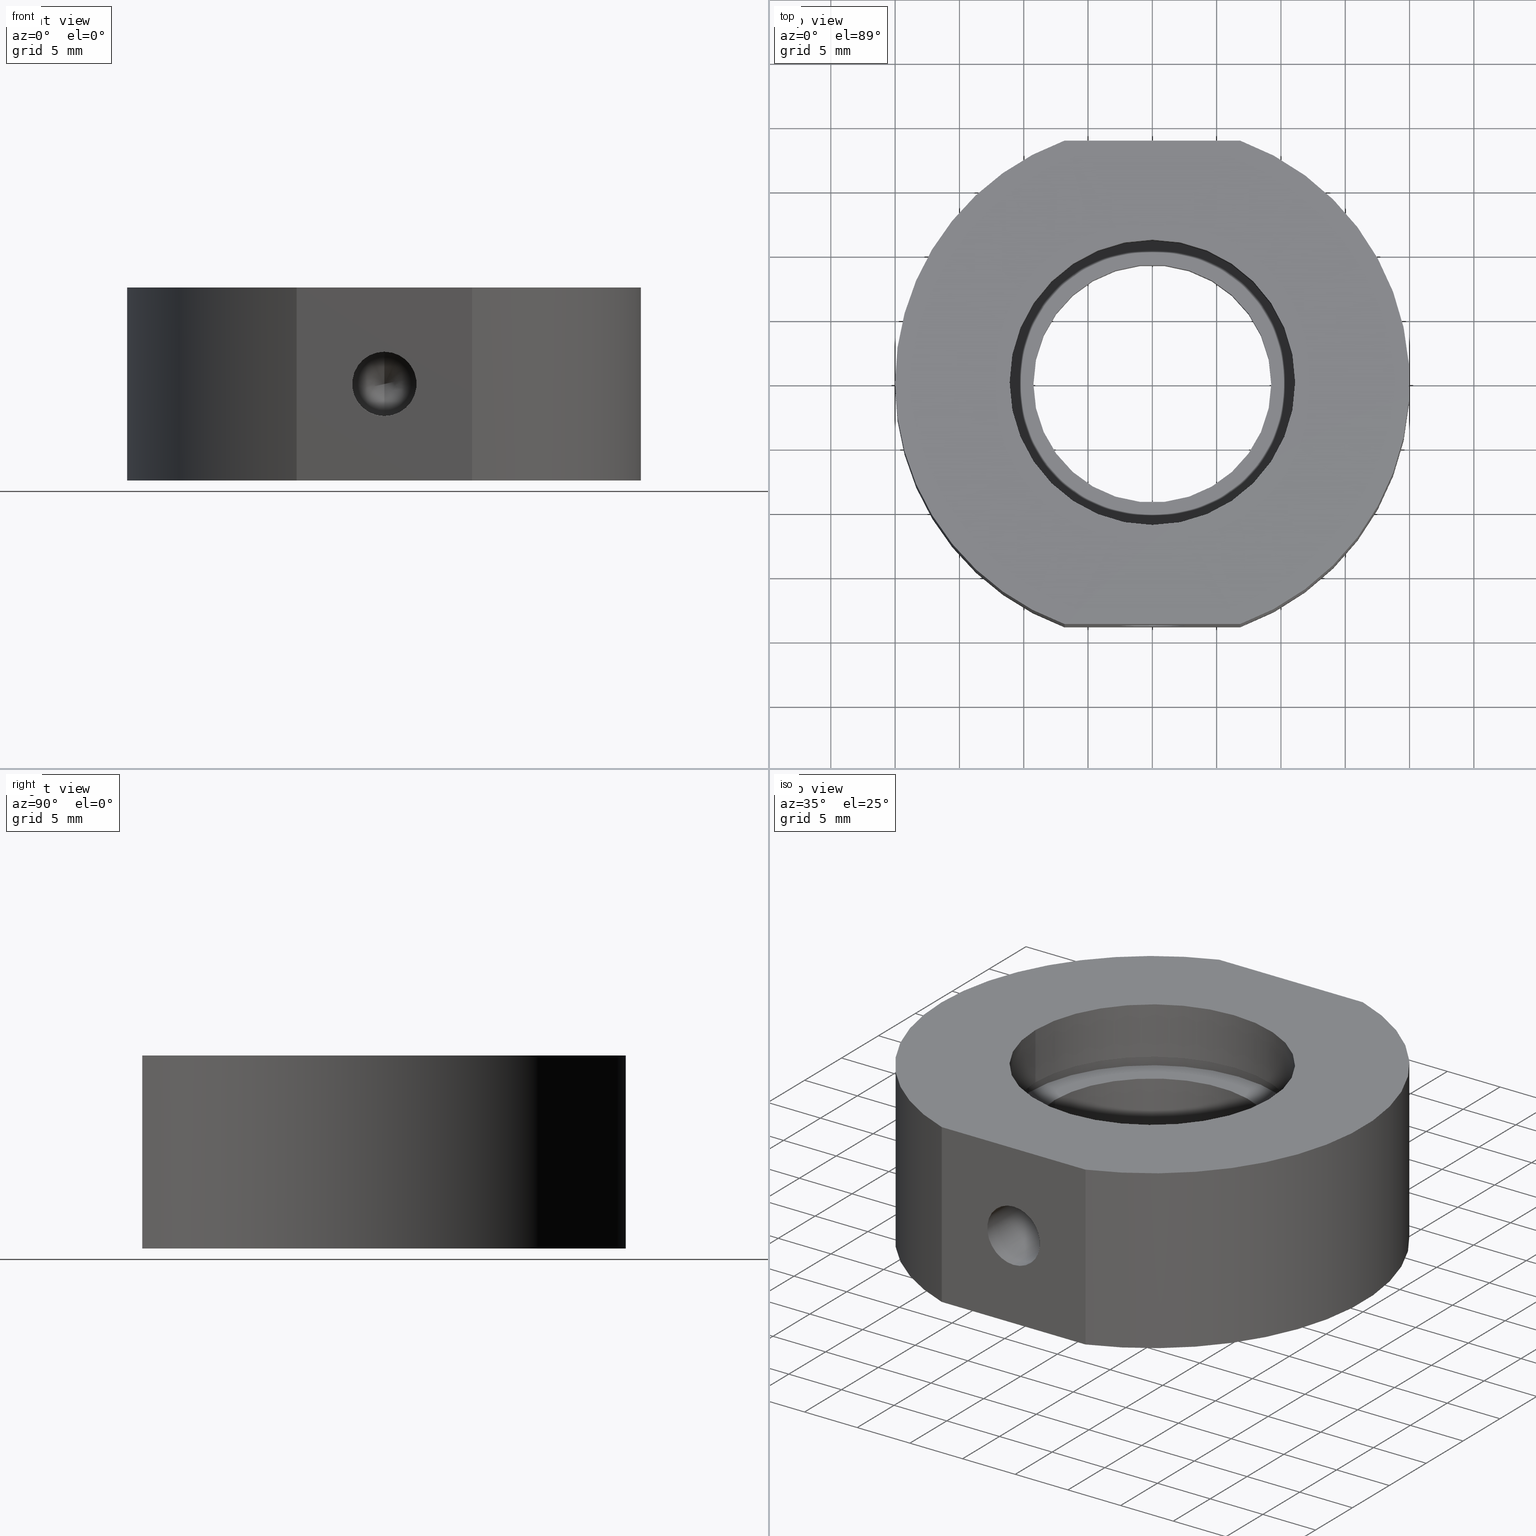
[diagram: canonical four-view strip — front | top / right | iso, engineering-drawing reading convention]
A machine part, canonical four-view strip (front | top / right | iso — engineering-drawing reading convention). The complete STEP part file that produces these views, byte-faithful:
ISO-10303-21;
HEADER;
FILE_DESCRIPTION (( 'STEP AP203' ),
    '1' );
FILE_NAME ('502015.STEP',
    '2019-09-04T07:32:53',
    ( '' ),
    ( '' ),
    'SwSTEP 2.0',
    'SolidWorks 2016',
    '' );
FILE_SCHEMA (( 'CONFIG_CONTROL_DESIGN' ));
ENDSEC;

DATA;
#1 = DIRECTION ( 'NONE',  ( -1.000000000000000000, 0.0000000000000000000, 1.224646799147350500E-016 ) ) ;
#2 = EDGE_LOOP ( 'NONE', ( #541, #911, #179, #917, #70 ) ) ;
#3 = DIRECTION ( 'NONE',  ( -0.0000000000000000000, -1.000000000000000000, -0.0000000000000000000 ) ) ;
#4 = EDGE_LOOP ( 'NONE', ( #227, #284 ) ) ;
#5 = APPLICATION_CONTEXT ( 'configuration controlled 3d designs of mechanical parts and assemblies' ) ;
#6 = DIRECTION ( 'NONE',  ( -0.0000000000000000000, -1.000000000000000000, -0.0000000000000000000 ) ) ;
#7 = CARTESIAN_POINT ( 'NONE',  ( 0.0000000000000000000, 0.0000000000000000000, -31.93906810035839800 ) ) ;
#8 = CC_DESIGN_APPROVAL ( #854, ( #325 ) ) ;
#9 = PERSON_AND_ORGANIZATION_ROLE ( 'design_supplier' ) ;
#10 = FACE_OUTER_BOUND ( 'NONE', #682, .T. ) ;
#11 = CIRCLE ( 'NONE', #184, 11.69999999999999900 ) ;
#12 = CARTESIAN_POINT ( 'NONE',  ( -9.250000000000000000, 0.0000000000000000000, -31.93906810035839800 ) ) ;
#13 = DESIGN_CONTEXT ( 'detailed design', #14, 'design' ) ;
#14 = APPLICATION_CONTEXT ( 'configuration controlled 3d designs of mechanical parts and assemblies' ) ;
#15 = ORIENTED_EDGE ( 'NONE', *, *, #563, .F. ) ;
#16 = AXIS2_PLACEMENT_3D ( 'NONE', #62, #517, #940 ) ;
#17 = ORIENTED_EDGE ( 'NONE', *, *, #677, .F. ) ;
#18 = DIRECTION ( 'NONE',  ( -1.224646799147350500E-016, -0.0000000000000000000, -1.000000000000000000 ) ) ;
#19 = DIRECTION ( 'NONE',  ( 1.224646799147350500E-016, 0.0000000000000000000, 1.000000000000000000 ) ) ;
#20 = CC_DESIGN_PERSON_AND_ORGANIZATION_ASSIGNMENT ( #740, #307, ( #103 ) ) ;
#21 = CARTESIAN_POINT ( 'NONE',  ( -11.69999999999999600, 0.0000000000000000000, -3.000000000000001300 ) ) ;
#22 = CIRCLE ( 'NONE', #16, 11.10000000000000000 ) ;
#23 = CARTESIAN_POINT ( 'NONE',  ( 6.071532165918824800E-015, 13.30000000000000100, 0.0000000000000000000 ) ) ;
#24 = ORIENTED_EDGE ( 'NONE', *, *, #608, .T. ) ;
#25 = CARTESIAN_POINT ( 'NONE',  ( 4.829892851045828800E-015, 0.0000000000000000000, 7.500000000000000000 ) ) ;
#26 = ORIENTED_EDGE ( 'NONE', *, *, #132, .F. ) ;
#27 = DIRECTION ( 'NONE',  ( -1.224646799147350500E-016, -0.0000000000000000000, -1.000000000000000000 ) ) ;
#28 = AXIS2_PLACEMENT_3D ( 'NONE', #722, #43, #795 ) ;
#29 = DIRECTION ( 'NONE',  ( -0.0000000000000000000, -1.000000000000000000, -0.0000000000000000000 ) ) ;
#30 = LOCAL_TIME ( 15, 32, 52.00000000000000000, #744 ) ;
#31 = PERSON_AND_ORGANIZATION ( #107, #337 ) ;
#32 = ORIENTED_EDGE ( 'NONE', *, *, #956, .T. ) ;
#33 = AXIS2_PLACEMENT_3D ( 'NONE', #395, #326, #482 ) ;
#34 = CIRCLE ( 'NONE', #787, 11.09999999999999800 ) ;
#35 = ADVANCED_FACE ( 'NONE', ( #49 ), #266, .F. ) ;
#36 = CARTESIAN_POINT ( 'NONE',  ( 0.0000000000000000000, 0.0000000000000000000, -31.93906810035839800 ) ) ;
#37 = EDGE_CURVE ( 'NONE', #163, #637, #34, .T. ) ;
#38 = CC_DESIGN_APPROVAL ( #84, ( #946 ) ) ;
#39 = DIRECTION ( 'NONE',  ( -0.0000000000000000000, 1.000000000000000000, -0.0000000000000000000 ) ) ;
#40 = LINE ( 'NONE', #400, #304 ) ;
#41 = VECTOR ( 'NONE', #875, 1000.000000000000000 ) ;
#42 = DIRECTION ( 'NONE',  ( -1.000000000000000000, 0.0000000000000000000, 1.301042606982605300E-016 ) ) ;
#43 = DIRECTION ( 'NONE',  ( -1.224646799147350500E-016, -0.0000000000000000000, -1.000000000000000000 ) ) ;
#44 = EDGE_CURVE ( 'NONE', #345, #648, #198, .T. ) ;
#45 = ORIENTED_EDGE ( 'NONE', *, *, #201, .T. ) ;
#46 = DIRECTION ( 'NONE',  ( 1.049727191138617800E-016, 0.5150380749100552700, -0.8571673007021116700 ) ) ;
#47 = LOCAL_TIME ( 15, 32, 52.00000000000000000, #117 ) ;
#48 = DIRECTION ( 'NONE',  ( -1.224646799147350500E-016, -0.0000000000000000000, -1.000000000000000000 ) ) ;
#49 = FACE_OUTER_BOUND ( 'NONE', #713, .T. ) ;
#50 = DIRECTION ( 'NONE',  ( -1.000000000000000000, 0.0000000000000000000, 0.0000000000000000000 ) ) ;
#51 = VECTOR ( 'NONE', #815, 1000.000000000000000 ) ;
#52 = LINE ( 'NONE', #688, #88 ) ;
#53 = CC_DESIGN_PERSON_AND_ORGANIZATION_ASSIGNMENT ( #183, #683, ( #325 ) ) ;
#54 = EDGE_LOOP ( 'NONE', ( #277, #808 ) ) ;
#55 = DIRECTION ( 'NONE',  ( -1.224646799147350500E-016, -0.0000000000000000000, -1.000000000000000000 ) ) ;
#56 = CARTESIAN_POINT ( 'NONE',  ( 11.09999999999999800, 1.359357947053561800E-015, -31.93906810035839800 ) ) ;
#57 = AXIS2_PLACEMENT_3D ( 'NONE', #340, #39, #418 ) ;
#58 = EDGE_LOOP ( 'NONE', ( #142, #234 ) ) ;
#59 = DIRECTION ( 'NONE',  ( -1.000000000000000000, 0.0000000000000000000, 1.224646799147350500E-016 ) ) ;
#60 = CARTESIAN_POINT ( 'NONE',  ( 11.69999999999999900, 1.432836755002403100E-015, -31.93906810035839800 ) ) ;
#61 = ORIENTED_EDGE ( 'NONE', *, *, #490, .T. ) ;
#62 = CARTESIAN_POINT ( 'NONE',  ( 3.544013711941110100E-015, 0.0000000000000000000, -3.000000000000002700 ) ) ;
#63 = CIRCLE ( 'NONE', #90, 11.69999999999999900 ) ;
#64 = FACE_OUTER_BOUND ( 'NONE', #685, .T. ) ;
#65 = EDGE_CURVE ( 'NONE', #163, #562, #408, .T. ) ;
#66 = CC_DESIGN_PERSON_AND_ORGANIZATION_ASSIGNMENT ( #587, #9, ( #103 ) ) ;
#67 = DIRECTION ( 'NONE',  ( 0.0000000000000000000, -0.0000000000000000000, 1.000000000000000000 ) ) ;
#68 = AXIS2_PLACEMENT_3D ( 'NONE', #453, #6, #308 ) ;
#69 = CALENDAR_DATE ( 2019, 4, 9 ) ;
#70 = ORIENTED_EDGE ( 'NONE', *, *, #371, .T. ) ;
#71 = DIRECTION ( 'NONE',  ( 0.0000000000000000000, 0.0000000000000000000, 1.000000000000000000 ) ) ;
#72 = CARTESIAN_POINT ( 'NONE',  ( -11.69999999999999900, 0.0000000000000000000, -31.93906810035839800 ) ) ;
#73 = FACE_BOUND ( 'NONE', #145, .T. ) ;
#74 = ORIENTED_EDGE ( 'NONE', *, *, #37, .F. ) ;
#75 = DIRECTION ( 'NONE',  ( -0.0000000000000000000, 1.000000000000000000, -0.0000000000000000000 ) ) ;
#76 = AXIS2_PLACEMENT_3D ( 'NONE', #355, #55, #42 ) ;
#77 = MECHANICAL_CONTEXT ( 'NONE', #147, 'mechanical' ) ;
#78 = CARTESIAN_POINT ( 'NONE',  ( 5.204170427930421300E-015, -18.80000000000000100, 0.0000000000000000000 ) ) ;
#79 =( NAMED_UNIT ( * ) SI_UNIT ( $, .STERADIAN. ) SOLID_ANGLE_UNIT ( ) );
#80 = EDGE_CURVE ( 'NONE', #811, #431, #519, .T. ) ;
#81 = ADVANCED_FACE ( 'NONE', ( #64 ), #290, .F. ) ;
#82 = DIRECTION ( 'NONE',  ( -0.0000000000000000000, -1.000000000000000000, -0.0000000000000000000 ) ) ;
#83 = FACE_BOUND ( 'NONE', #58, .T. ) ;
#84 = APPROVAL ( #686, 'δָ��' ) ;
#85 = DIRECTION ( 'NONE',  ( 1.000000000000000000, 0.0000000000000000000, 0.0000000000000000000 ) ) ;
#86 = CARTESIAN_POINT ( 'NONE',  ( 3.666478391855845600E-015, 0.0000000000000000000, -2.000000000000001800 ) ) ;
#87 = VECTOR ( 'NONE', #225, 1000.000000000000000 ) ;
#88 = VECTOR ( 'NONE', #82, 1000.000000000000000 ) ;
#89 = CARTESIAN_POINT ( 'NONE',  ( 2.992922652324802700E-015, 0.0000000000000000000, -7.500000000000000000 ) ) ;
#90 = AXIS2_PLACEMENT_3D ( 'NONE', #632, #173, #703 ) ;
#91 = DIRECTION ( 'NONE',  ( -1.000000000000000000, 0.0000000000000000000, 1.562813942321447800E-016 ) ) ;
#92 = CARTESIAN_POINT ( 'NONE',  ( -6.823488843692808300, 18.79999999999999400, -31.93906810035839800 ) ) ;
#93 = ORIENTED_EDGE ( 'NONE', *, *, #890, .T. ) ;
#94 = COORDINATED_UNIVERSAL_TIME_OFFSET ( 8, 0, .AHEAD. ) ;
#95 = DIRECTION ( 'NONE',  ( -1.224646799147350500E-016, -0.0000000000000000000, -1.000000000000000000 ) ) ;
#96 = CALENDAR_DATE ( 2019, 4, 9 ) ;
#97 = EDGE_CURVE ( 'NONE', #626, #870, #467, .T. ) ;
#98 = CARTESIAN_POINT ( 'NONE',  ( 6.273598887778138000E-015, 13.30000000000000100, -1.649999999999998600 ) ) ;
#99 = CIRCLE ( 'NONE', #905, 2.499999999999997800 ) ;
#100 = ADVANCED_FACE ( 'NONE', ( #756 ), #160, .F. ) ;
#101 = CARTESIAN_POINT ( 'NONE',  ( 5.204170427930421300E-015, -18.80000000000000100, -2.499999999999999100 ) ) ;
#102 = VERTEX_POINT ( 'NONE', #150 ) ;
#103 = PRODUCT_DEFINITION_FORMATION_WITH_SPECIFIED_SOURCE ( '�κ�', '', #723, .NOT_KNOWN. ) ;
#104 = ADVANCED_FACE ( 'NONE', ( #814 ), #419, .F. ) ;
#105 = ORIENTED_EDGE ( 'NONE', *, *, #169, .F. ) ;
#106 = VERTEX_POINT ( 'NONE', #818 ) ;
#107 = PERSON ( 'δָ��', 'δָ��', 'δָ��', ('δָ��'), ('δָ��'), ('δָ��') ) ;
#108 = AXIS2_PLACEMENT_3D ( 'NONE', #86, #219, #367 ) ;
#109 = CYLINDRICAL_SURFACE ( 'NONE', #570, 11.69999999999999900 ) ;
#110 = CARTESIAN_POINT ( 'NONE',  ( 4.829892851045827200E-015, 0.0000000000000000000, 7.499999999999992900 ) ) ;
#111 = VECTOR ( 'NONE', #397, 1000.000000000000000 ) ;
#112 = PLANE ( 'NONE',  #366 ) ;
#113 = ORIENTED_EDGE ( 'NONE', *, *, #759, .F. ) ;
#114 = EDGE_CURVE ( 'NONE', #711, #360, #559, .T. ) ;
#115 = ORIENTED_EDGE ( 'NONE', *, *, #677, .T. ) ;
#116 = CARTESIAN_POINT ( 'NONE',  ( 4.278801791429520600E-015, 0.0000000000000000000, 2.999999999999995600 ) ) ;
#117 = COORDINATED_UNIVERSAL_TIME_OFFSET ( 8, 0, .AHEAD. ) ;
#118 = EDGE_LOOP ( 'NONE', ( #205, #832 ) ) ;
#119 = CARTESIAN_POINT ( 'NONE',  ( 0.0000000000000000000, 0.0000000000000000000, -31.93906810035839800 ) ) ;
#120 = CARTESIAN_POINT ( 'NONE',  ( 3.544013711941110100E-015, 0.0000000000000000000, -3.000000000000002700 ) ) ;
#121 = ORIENTED_EDGE ( 'NONE', *, *, #65, .T. ) ;
#122 = AXIS2_PLACEMENT_3D ( 'NONE', #119, #350, #50 ) ;
#123 = LINE ( 'NONE', #423, #684 ) ;
#124 = CARTESIAN_POINT ( 'NONE',  ( 9.250000000000003600, 1.132798289211301700E-015, -2.000000000000003100 ) ) ;
#125 = DIRECTION ( 'NONE',  ( -1.000000000000000000, 0.0000000000000000000, 1.406532548089303000E-016 ) ) ;
#126 = AXIS2_PLACEMENT_3D ( 'NONE', #507, #269, #790 ) ;
#127 = DIRECTION ( 'NONE',  ( -1.000000000000000000, -0.0000000000000000000, -0.0000000000000000000 ) ) ;
#128 = COORDINATED_UNIVERSAL_TIME_OFFSET ( 8, 0, .AHEAD. ) ;
#129 = DATE_AND_TIME ( #857, #226 ) ;
#130 = ORIENTED_EDGE ( 'NONE', *, *, #908, .F. ) ;
#131 = LINE ( 'NONE', #220, #51 ) ;
#132 = EDGE_CURVE ( 'NONE', #637, #146, #859, .T. ) ;
#133 = FACE_OUTER_BOUND ( 'NONE', #770, .T. ) ;
#134 = CC_DESIGN_APPROVAL ( #172, ( #824 ) ) ;
#135 = ORIENTED_EDGE ( 'NONE', *, *, #401, .F. ) ;
#136 = PLANE ( 'NONE',  #230 ) ;
#137 = DIRECTION ( 'NONE',  ( -0.0000000000000000000, 1.000000000000000000, -0.0000000000000000000 ) ) ;
#138 = ORIENTED_EDGE ( 'NONE', *, *, #527, .T. ) ;
#139 = AXIS2_PLACEMENT_3D ( 'NONE', #675, #945, #356 ) ;
#140 = DATE_AND_TIME ( #347, #918 ) ;
#141 = DIRECTION ( 'NONE',  ( -0.0000000000000000000, -1.000000000000000000, -0.0000000000000000000 ) ) ;
#142 = ORIENTED_EDGE ( 'NONE', *, *, #594, .F. ) ;
#143 = FACE_OUTER_BOUND ( 'NONE', #203, .T. ) ;
#144 = EDGE_CURVE ( 'NONE', #195, #870, #349, .T. ) ;
#145 = EDGE_LOOP ( 'NONE', ( #370, #445 ) ) ;
#146 = VERTEX_POINT ( 'NONE', #769 ) ;
#147 = APPLICATION_CONTEXT ( 'configuration controlled 3d designs of mechanical parts and assemblies' ) ;
#148 = DIRECTION ( 'NONE',  ( 0.0000000000000000000, -0.5150380749100550400, -0.8571673007021117800 ) ) ;
#149 = DIRECTION ( 'NONE',  ( -0.0000000000000000000, 1.000000000000000000, -0.0000000000000000000 ) ) ;
#150 = CARTESIAN_POINT ( 'NONE',  ( -11.69999999999999600, 0.0000000000000000000, -2.000000000000004000 ) ) ;
#151 = ORIENTED_EDGE ( 'NONE', *, *, #552, .T. ) ;
#152 = APPROVAL_STATUS ( 'not_yet_approved' ) ;
#153 = ORIENTED_EDGE ( 'NONE', *, *, #322, .F. ) ;
#154 = CARTESIAN_POINT ( 'NONE',  ( 5.204170427930421300E-015, -18.80000000000000100, 0.0000000000000000000 ) ) ;
#155 = EDGE_LOOP ( 'NONE', ( #850, #860, #938, #791 ) ) ;
#156 = PERSON_AND_ORGANIZATION ( #107, #337 ) ;
#157 = APPROVAL_ROLE ( '' ) ;
#158 = ORIENTED_EDGE ( 'NONE', *, *, #662, .F. ) ;
#159 = CIRCLE ( 'NONE', #194, 2.499999999999999100 ) ;
#160 = CYLINDRICAL_SURFACE ( 'NONE', #178, 11.69999999999999900 ) ;
#161 = ADVANCED_FACE ( 'NONE', ( #838 ), #955, .F. ) ;
#162 = SECURITY_CLASSIFICATION_LEVEL ( 'unclassified' ) ;
#163 = VERTEX_POINT ( 'NONE', #170 ) ;
#164 = MANIFOLD_SOLID_BREP ( 'M6 ���ƿ�2', #753 ) ;
#165 = AXIS2_PLACEMENT_3D ( 'NONE', #241, #461, #538 ) ;
#166 = ORIENTED_EDGE ( 'NONE', *, *, #401, .T. ) ;
#167 = CARTESIAN_POINT ( 'NONE',  ( 5.204170427930421300E-015, -13.30000000000000100, 0.0000000000000000000 ) ) ;
#168 = DIRECTION ( 'NONE',  ( -1.000000000000000000, 0.0000000000000000000, 1.301042606982605300E-016 ) ) ;
#169 = EDGE_CURVE ( 'NONE', #379, #605, #52, .T. ) ;
#170 = CARTESIAN_POINT ( 'NONE',  ( 11.10000000000000100, 1.359357947053561800E-015, 7.499999999999998200 ) ) ;
#171 = COORDINATED_UNIVERSAL_TIME_OFFSET ( 8, 0, .AHEAD. ) ;
#172 = APPROVAL ( #892, 'δָ��' ) ;
#173 = DIRECTION ( 'NONE',  ( -1.224646799147350500E-016, -0.0000000000000000000, -1.000000000000000000 ) ) ;
#174 = ADVANCED_FACE ( 'NONE', ( #806 ), #720, .F. ) ;
#175 = DIRECTION ( 'NONE',  ( 0.0000000000000000000, 0.0000000000000000000, 1.000000000000000000 ) ) ;
#176 = CYLINDRICAL_SURFACE ( 'NONE', #165, 11.69999999999999900 ) ;
#177 = DIRECTION ( 'NONE',  ( -1.224646799147350500E-016, -0.0000000000000000000, -1.000000000000000000 ) ) ;
#178 = AXIS2_PLACEMENT_3D ( 'NONE', #666, #48, #292 ) ;
#179 = ORIENTED_EDGE ( 'NONE', *, *, #354, .T. ) ;
#180 = ORIENTED_EDGE ( 'NONE', *, *, #667, .T. ) ;
#181 = VERTEX_POINT ( 'NONE', #233 ) ;
#182 = ADVANCED_FACE ( 'NONE', ( #143 ), #176, .F. ) ;
#183 = PERSON_AND_ORGANIZATION ( #107, #337 ) ;
#184 = AXIS2_PLACEMENT_3D ( 'NONE', #925, #348, #424 ) ;
#185 = APPROVAL_PERSON_ORGANIZATION ( #574, #492, #621 ) ;
#186 = FACE_OUTER_BOUND ( 'NONE', #4, .T. ) ;
#187 = FACE_OUTER_BOUND ( 'NONE', #323, .T. ) ;
#188 = EDGE_CURVE ( 'NONE', #429, #609, #786, .T. ) ;
#189 = CC_DESIGN_SECURITY_CLASSIFICATION ( #458, ( #824 ) ) ;
#190 = ORIENTED_EDGE ( 'NONE', *, *, #662, .T. ) ;
#191 = ORIENTED_EDGE ( 'NONE', *, *, #390, .F. ) ;
#192 = PERSON_AND_ORGANIZATION ( #107, #337 ) ;
#193 = LINE ( 'NONE', #358, #954 ) ;
#194 = AXIS2_PLACEMENT_3D ( 'NONE', #154, #3, #687 ) ;
#195 = VERTEX_POINT ( 'NONE', #834 ) ;
#196 = CARTESIAN_POINT ( 'NONE',  ( -19.99999999999999600, 0.0000000000000000000, 7.499999999999995600 ) ) ;
#197 = CARTESIAN_POINT ( 'NONE',  ( 4.278801791429520600E-015, 0.0000000000000000000, 2.999999999999995600 ) ) ;
#198 = LINE ( 'NONE', #60, #826 ) ;
#199 = EDGE_LOOP ( 'NONE', ( #794, #302 ) ) ;
#200 = ORIENTED_EDGE ( 'NONE', *, *, #563, .T. ) ;
#201 = EDGE_CURVE ( 'NONE', #562, #146, #318, .T. ) ;
#202 = ORIENTED_EDGE ( 'NONE', *, *, #188, .F. ) ;
#203 = EDGE_LOOP ( 'NONE', ( #885, #810, #476, #15 ) ) ;
#204 = EDGE_LOOP ( 'NONE', ( #951, #483, #718, #135, #852 ) ) ;
#205 = ORIENTED_EDGE ( 'NONE', *, *, #766, .T. ) ;
#206 = ORIENTED_EDGE ( 'NONE', *, *, #249, .T. ) ;
#207 = CONICAL_SURFACE ( 'NONE', #68, 2.499999999999997800, 1.029744258676653400 ) ;
#208 = DIRECTION ( 'NONE',  ( -1.224646799147350500E-016, -0.0000000000000000000, -1.000000000000000000 ) ) ;
#209 = CIRCLE ( 'NONE', #557, 11.69999999999999900 ) ;
#210 = DIRECTION ( 'NONE',  ( -0.0000000000000000000, -1.000000000000000000, -0.0000000000000000000 ) ) ;
#211 = DIRECTION ( 'NONE',  ( -1.224646799147350500E-016, -0.0000000000000000000, -1.000000000000000000 ) ) ;
#212 = CARTESIAN_POINT ( 'NONE',  ( 0.0000000000000000000, 0.0000000000000000000, -31.93906810035839800 ) ) ;
#213 = AXIS2_PLACEMENT_3D ( 'NONE', #564, #779, #558 ) ;
#214 = EDGE_LOOP ( 'NONE', ( #166, #887, #411, #907 ) ) ;
#215 = DIRECTION ( 'NONE',  ( -1.224646799147350500E-016, -0.0000000000000000000, -1.000000000000000000 ) ) ;
#216 = EDGE_CURVE ( 'NONE', #429, #704, #776, .T. ) ;
#217 = DIRECTION ( 'NONE',  ( 0.0000000000000000000, 0.0000000000000000000, -1.000000000000000000 ) ) ;
#218 = LINE ( 'NONE', #437, #601 ) ;
#219 = DIRECTION ( 'NONE',  ( -1.224646799147350500E-016, -0.0000000000000000000, -1.000000000000000000 ) ) ;
#220 = CARTESIAN_POINT ( 'NONE',  ( 6.823488843692808300, 18.79999999999999400, -31.93906810035839800 ) ) ;
#221 = ORIENTED_EDGE ( 'NONE', *, *, #853, .F. ) ;
#222 = EDGE_LOOP ( 'NONE', ( #509, #539, #250 ) ) ;
#223 = AXIS2_PLACEMENT_3D ( 'NONE', #89, #27, #168 ) ;
#224 = APPROVAL_STATUS ( 'not_yet_approved' ) ;
#225 = DIRECTION ( 'NONE',  ( 1.049727191138618000E-016, -0.5150380749100550400, 0.8571673007021117800 ) ) ;
#226 = LOCAL_TIME ( 15, 32, 52.00000000000000000, #171 ) ;
#227 = ORIENTED_EDGE ( 'NONE', *, *, #865, .T. ) ;
#228 = APPROVAL_ROLE ( '' ) ;
#229 = DIRECTION ( 'NONE',  ( 0.0000000000000000000, 0.0000000000000000000, 1.000000000000000000 ) ) ;
#230 = AXIS2_PLACEMENT_3D ( 'NONE', #508, #368, #878 ) ;
#231 = CIRCLE ( 'NONE', #542, 20.00000000000000000 ) ;
#232 = DATE_TIME_ROLE ( 'creation_date' ) ;
#233 = CARTESIAN_POINT ( 'NONE',  ( -6.823488843692788700, 18.80000000000000100, 7.500000000000000000 ) ) ;
#234 = ORIENTED_EDGE ( 'NONE', *, *, #490, .F. ) ;
#235 = EDGE_CURVE ( 'NONE', #648, #733, #209, .T. ) ;
#236 = DIRECTION ( 'NONE',  ( -1.224646799147350500E-016, -0.0000000000000000000, -1.000000000000000000 ) ) ;
#237 = CC_DESIGN_PERSON_AND_ORGANIZATION_ASSIGNMENT ( #31, #545, ( #378 ) ) ;
#238 = ORIENTED_EDGE ( 'NONE', *, *, #505, .F. ) ;
#239 = CIRCLE ( 'NONE', #898, 11.69999999999999900 ) ;
#240 = PERSON_AND_ORGANIZATION_ROLE ( 'classification_officer' ) ;
#241 = CARTESIAN_POINT ( 'NONE',  ( 0.0000000000000000000, 0.0000000000000000000, -31.93906810035839800 ) ) ;
#242 = CIRCLE ( 'NONE', #213, 9.250000000000000000 ) ;
#243 = CARTESIAN_POINT ( 'NONE',  ( 6.071532165918824800E-015, 18.80000000000000100, 0.0000000000000000000 ) ) ;
#244 = FACE_OUTER_BOUND ( 'NONE', #828, .T. ) ;
#245 = AXIS2_PLACEMENT_3D ( 'NONE', #243, #247, #775 ) ;
#246 = DIRECTION ( 'NONE',  ( -1.224646799147350500E-016, -0.0000000000000000000, -1.000000000000000000 ) ) ;
#247 = DIRECTION ( 'NONE',  ( -0.0000000000000000000, 1.000000000000000000, -0.0000000000000000000 ) ) ;
#248 = VERTEX_POINT ( 'NONE', #310 ) ;
#249 = EDGE_CURVE ( 'NONE', #146, #562, #364, .T. ) ;
#250 = ORIENTED_EDGE ( 'NONE', *, *, #216, .T. ) ;
#251 = APPROVAL_DATE_TIME ( #847, #172 ) ;
#252 = ORIENTED_EDGE ( 'NONE', *, *, #37, .T. ) ;
#253 = DIRECTION ( 'NONE',  ( 0.0000000000000000000, 0.0000000000000000000, -1.000000000000000000 ) ) ;
#254 = FACE_OUTER_BOUND ( 'NONE', #155, .T. ) ;
#255 = CIRCLE ( 'NONE', #346, 1.649999999999989900 ) ;
#256 = ORIENTED_EDGE ( 'NONE', *, *, #169, .T. ) ;
#257 = CC_DESIGN_PERSON_AND_ORGANIZATION_ASSIGNMENT ( #640, #689, ( #824 ) ) ;
#258 = ADVANCED_FACE ( 'NONE', ( #645 ), #433, .T. ) ;
#259 = ORIENTED_EDGE ( 'NONE', *, *, #956, .F. ) ;
#260 = PRODUCT ( '502015', '502015', '', ( #383 ) ) ;
#261 = DATE_AND_TIME ( #283, #727 ) ;
#262 = AXIS2_PLACEMENT_3D ( 'NONE', #441, #602, #819 ) ;
#263 = CIRCLE ( 'NONE', #738, 9.250000000000000000 ) ;
#264 = ADVANCED_BREP_SHAPE_REPRESENTATION ( '502015', ( #164, #668 ), #928 ) ;
#265 = LINE ( 'NONE', #707, #591 ) ;
#266 = CYLINDRICAL_SURFACE ( 'NONE', #873, 11.10000000000000000 ) ;
#267 = EDGE_CURVE ( 'NONE', #864, #352, #11, .T. ) ;
#268 = CC_DESIGN_PERSON_AND_ORGANIZATION_ASSIGNMENT ( #192, #240, ( #458 ) ) ;
#269 = DIRECTION ( 'NONE',  ( -0.0000000000000000000, -1.000000000000000000, -0.0000000000000000000 ) ) ;
#270 = DIRECTION ( 'NONE',  ( -1.000000000000000000, 0.0000000000000000000, 0.0000000000000000000 ) ) ;
#271 = CARTESIAN_POINT ( 'NONE',  ( 6.823488843692798500, -18.80000000000000100, 7.500000000000000000 ) ) ;
#272 = APPROVAL_PERSON_ORGANIZATION ( #730, #553, #627 ) ;
#273 = LOCAL_TIME ( 15, 32, 52.00000000000000000, #478 ) ;
#274 = CARTESIAN_POINT ( 'NONE',  ( 4.156337111514785400E-015, 0.0000000000000000000, 1.999999999999994900 ) ) ;
#275 = FACE_BOUND ( 'NONE', #520, .T. ) ;
#276 = ORIENTED_EDGE ( 'NONE', *, *, #877, .T. ) ;
#277 = ORIENTED_EDGE ( 'NONE', *, *, #249, .F. ) ;
#278 = CARTESIAN_POINT ( 'NONE',  ( 11.10000000000000000, 1.359357947053562200E-015, -31.93906810035839800 ) ) ;
#279 = DIRECTION ( 'NONE',  ( -1.000000000000000000, 0.0000000000000000000, 0.0000000000000000000 ) ) ;
#280 = DIRECTION ( 'NONE',  ( -1.224646799147350500E-016, -0.0000000000000000000, -1.000000000000000000 ) ) ;
#281 = AXIS2_PLACEMENT_3D ( 'NONE', #479, #331, #913 ) ;
#282 = CARTESIAN_POINT ( 'NONE',  ( -9.249999999999996400, 0.0000000000000000000, -2.000000000000000400 ) ) ;
#283 = CALENDAR_DATE ( 2019, 4, 9 ) ;
#284 = ORIENTED_EDGE ( 'NONE', *, *, #634, .T. ) ;
#285 = CIRCLE ( 'NONE', #434, 11.69999999999999900 ) ;
#286 = EDGE_CURVE ( 'NONE', #293, #711, #440, .T. ) ;
#287 = CC_DESIGN_SECURITY_CLASSIFICATION ( #325, ( #103 ) ) ;
#288 = LINE ( 'NONE', #351, #785 ) ;
#289 = DIRECTION ( 'NONE',  ( -1.224646799147350500E-016, -0.0000000000000000000, -1.000000000000000000 ) ) ;
#290 = CYLINDRICAL_SURFACE ( 'NONE', #498, 1.649999999999994400 ) ;
#291 = CARTESIAN_POINT ( 'NONE',  ( 4.829892851045828800E-015, 0.0000000000000000000, 7.500000000000000000 ) ) ;
#292 = DIRECTION ( 'NONE',  ( -1.000000000000000000, 0.0000000000000000000, 0.0000000000000000000 ) ) ;
#293 = VERTEX_POINT ( 'NONE', #353 ) ;
#294 = AXIS2_PLACEMENT_3D ( 'NONE', #580, #729, #270 ) ;
#295 = CARTESIAN_POINT ( 'NONE',  ( 0.0000000000000000000, 0.0000000000000000000, 0.0000000000000000000 ) ) ;
#296 = CARTESIAN_POINT ( 'NONE',  ( 11.10000000000000300, -18.80000000000000100, -7.500000000000004400 ) ) ;
#297 = PERSON_AND_ORGANIZATION ( #107, #337 ) ;
#298 = VERTEX_POINT ( 'NONE', #855 ) ;
#299 = DIRECTION ( 'NONE',  ( -1.000000000000000000, 0.0000000000000000000, 1.406532548089303000E-016 ) ) ;
#300 = FACE_OUTER_BOUND ( 'NONE', #2, .T. ) ;
#301 = CARTESIAN_POINT ( 'NONE',  ( 5.510332127717259900E-015, -13.30000000000000100, 2.499999999999997800 ) ) ;
#302 = ORIENTED_EDGE ( 'NONE', *, *, #80, .F. ) ;
#303 = EDGE_CURVE ( 'NONE', #778, #910, #231, .T. ) ;
#304 = VECTOR ( 'NONE', #19, 1000.000000000000000 ) ;
#305 = APPROVAL_ROLE ( '' ) ;
#306 = CARTESIAN_POINT ( 'NONE',  ( 5.204170427930421300E-015, -13.30000000000000100, -2.499999999999997800 ) ) ;
#307 = PERSON_AND_ORGANIZATION_ROLE ( 'creator' ) ;
#308 = DIRECTION ( 'NONE',  ( 0.0000000000000000000, 0.0000000000000000000, -1.000000000000000000 ) ) ;
#309 = ORIENTED_EDGE ( 'NONE', *, *, #802, .T. ) ;
#310 = CARTESIAN_POINT ( 'NONE',  ( -6.823488843692790500, 18.80000000000000100, -7.499999999999999100 ) ) ;
#311 = EDGE_LOOP ( 'NONE', ( #259, #575, #405, #914 ) ) ;
#312 = ORIENTED_EDGE ( 'NONE', *, *, #766, .F. ) ;
#313 = FACE_OUTER_BOUND ( 'NONE', #493, .T. ) ;
#314 = CYLINDRICAL_SURFACE ( 'NONE', #122, 11.09999999999999800 ) ;
#315 = DIRECTION ( 'NONE',  ( -1.000000000000000000, 0.0000000000000000000, 1.112002228190261000E-016 ) ) ;
#316 = CYLINDRICAL_SURFACE ( 'NONE', #245, 1.649999999999994400 ) ;
#317 = AXIS2_PLACEMENT_3D ( 'NONE', #463, #18, #551 ) ;
#318 = CIRCLE ( 'NONE', #442, 11.09999999999999800 ) ;
#319 = ADVANCED_FACE ( 'NONE', ( #617, #653 ), #569, .F. ) ;
#320 = DIRECTION ( 'NONE',  ( -0.0000000000000000000, 1.000000000000000000, -0.0000000000000000000 ) ) ;
#321 = ORIENTED_EDGE ( 'NONE', *, *, #710, .T. ) ;
#322 = EDGE_CURVE ( 'NONE', #679, #343, #900, .T. ) ;
#323 = EDGE_LOOP ( 'NONE', ( #820, #415, #485 ) ) ;
#324 = DIRECTION ( 'NONE',  ( -1.000000000000000000, -0.0000000000000000000, 1.224646799147350500E-016 ) ) ;
#325 = SECURITY_CLASSIFICATION ( '', '', #162 ) ;
#326 = DIRECTION ( 'NONE',  ( -1.224646799147350500E-016, -0.0000000000000000000, -1.000000000000000000 ) ) ;
#327 = APPROVAL_DATE_TIME ( #140, #854 ) ;
#328 = EDGE_LOOP ( 'NONE', ( #840, #681, #796, #24 ) ) ;
#329 = ORIENTED_EDGE ( 'NONE', *, *, #865, .F. ) ;
#330 = ADVANCED_FACE ( 'NONE', ( #187 ), #593, .F. ) ;
#331 = DIRECTION ( 'NONE',  ( -1.224646799147350500E-016, -0.0000000000000000000, -1.000000000000000000 ) ) ;
#332 = FACE_OUTER_BOUND ( 'NONE', #700, .T. ) ;
#333 = ORIENTED_EDGE ( 'NONE', *, *, #710, .F. ) ;
#334 = APPROVAL ( #152, 'δָ��' ) ;
#335 = CARTESIAN_POINT ( 'NONE',  ( -19.99999999999999600, 0.0000000000000000000, -7.499999999999997300 ) ) ;
#336 = AXIS2_PLACEMENT_3D ( 'NONE', #7, #631, #555 ) ;
#337 = ORGANIZATION ( 'δָ��', 'δָ��', '' ) ;
#338 = ORIENTED_EDGE ( 'NONE', *, *, #390, .T. ) ;
#339 = LINE ( 'NONE', #422, #874 ) ;
#340 = CARTESIAN_POINT ( 'NONE',  ( 6.071532165918824800E-015, 13.30000000000000100, 0.0000000000000000000 ) ) ;
#341 = CONICAL_SURFACE ( 'NONE', #690, 1.649999999999998600, 1.029744258676653200 ) ;
#342 = EDGE_CURVE ( 'NONE', #704, #429, #568, .T. ) ;
#343 = VERTEX_POINT ( 'NONE', #306 ) ;
#344 = AXIS2_PLACEMENT_3D ( 'NONE', #389, #448, #901 ) ;
#345 = VERTEX_POINT ( 'NONE', #536 ) ;
#346 = AXIS2_PLACEMENT_3D ( 'NONE', #456, #758, #619 ) ;
#347 = CALENDAR_DATE ( 2019, 4, 9 ) ;
#348 = DIRECTION ( 'NONE',  ( -1.224646799147350500E-016, -0.0000000000000000000, -1.000000000000000000 ) ) ;
#349 = CIRCLE ( 'NONE', #922, 11.10000000000000000 ) ;
#350 = DIRECTION ( 'NONE',  ( -1.224646799147350500E-016, -0.0000000000000000000, -1.000000000000000000 ) ) ;
#351 = CARTESIAN_POINT ( 'NONE',  ( 6.823488843692808300, -18.79999999999999400, -31.93906810035839800 ) ) ;
#352 = VERTEX_POINT ( 'NONE', #525 ) ;
#353 = CARTESIAN_POINT ( 'NONE',  ( 6.823488843692795800, 18.80000000000000100, -7.500000000000000900 ) ) ;
#354 = EDGE_CURVE ( 'NONE', #360, #676, #748, .T. ) ;
#355 = CARTESIAN_POINT ( 'NONE',  ( 4.829892851045827200E-015, 0.0000000000000000000, 7.499999999999992900 ) ) ;
#356 = DIRECTION ( 'NONE',  ( -1.000000000000000000, 0.0000000000000000000, 0.0000000000000000000 ) ) ;
#357 = ORIENTED_EDGE ( 'NONE', *, *, #44, .F. ) ;
#358 = CARTESIAN_POINT ( 'NONE',  ( 5.204170427930421300E-015, -18.80000000000000100, -2.499999999999998700 ) ) ;
#359 = DIRECTION ( 'NONE',  ( 1.000000000000000000, 0.0000000000000000000, -1.224646799147350500E-016 ) ) ;
#360 = VERTEX_POINT ( 'NONE', #618 ) ;
#361 = APPROVAL_PERSON_ORGANIZATION ( #566, #334, #550 ) ;
#362 = CC_DESIGN_PERSON_AND_ORGANIZATION_ASSIGNMENT ( #393, #388, ( #824 ) ) ;
#363 = CIRCLE ( 'NONE', #830, 1.649999999999989900 ) ;
#364 = CIRCLE ( 'NONE', #705, 11.09999999999999800 ) ;
#365 = DIRECTION ( 'NONE',  ( -1.000000000000000000, 0.0000000000000000000, 1.301042606982605300E-016 ) ) ;
#366 = AXIS2_PLACEMENT_3D ( 'NONE', #649, #572, #737 ) ;
#367 = DIRECTION ( 'NONE',  ( -1.000000000000000000, 0.0000000000000000000, 1.406532548089303000E-016 ) ) ;
#368 = DIRECTION ( 'NONE',  ( -1.224646799147350500E-016, 0.0000000000000000000, -1.000000000000000000 ) ) ;
#369 = ORIENTED_EDGE ( 'NONE', *, *, #132, .T. ) ;
#370 = ORIENTED_EDGE ( 'NONE', *, *, #944, .T. ) ;
#371 = EDGE_CURVE ( 'NONE', #248, #293, #792, .T. ) ;
#372 = CARTESIAN_POINT ( 'NONE',  ( 5.510332127717259900E-015, -18.80000000000000100, 2.499999999999999100 ) ) ;
#373 = CARTESIAN_POINT ( 'NONE',  ( 0.0000000000000000000, 0.0000000000000000000, -31.93906810035839800 ) ) ;
#374 = CC_DESIGN_DATE_AND_TIME_ASSIGNMENT ( #501, #827, ( #946 ) ) ;
#375 = DESIGN_CONTEXT ( 'detailed design', #5, 'design' ) ;
#376 = VECTOR ( 'NONE', #236, 1000.000000000000000 ) ;
#377 = DIRECTION ( 'NONE',  ( -1.224646799147350500E-016, -0.0000000000000000000, -1.000000000000000000 ) ) ;
#378 = PRODUCT_DEFINITION ( 'δ֪', '', #103, #13 ) ;
#379 = VERTEX_POINT ( 'NONE', #301 ) ;
#380 = PERSON_AND_ORGANIZATION_ROLE ( 'design_owner' ) ;
#381 = CARTESIAN_POINT ( 'NONE',  ( 11.69999999999999900, 1.432836755002403100E-015, -31.93906810035839800 ) ) ;
#382 = APPROVAL_DATE_TIME ( #129, #492 ) ;
#383 = MECHANICAL_CONTEXT ( 'NONE', #821, 'mechanical' ) ;
#384 = AXIS2_PLACEMENT_3D ( 'NONE', #274, #931, #125 ) ;
#385 = CARTESIAN_POINT ( 'NONE',  ( 6.071532165918824800E-015, 18.80000000000000100, 0.0000000000000000000 ) ) ;
#386 = CYLINDRICAL_SURFACE ( 'NONE', #281, 11.10000000000000000 ) ;
#387 = FACE_OUTER_BOUND ( 'NONE', #214, .T. ) ;
#388 = PERSON_AND_ORGANIZATION_ROLE ( 'design_supplier' ) ;
#389 = CARTESIAN_POINT ( 'NONE',  ( 3.544013711941110100E-015, 0.0000000000000000000, -3.000000000000002700 ) ) ;
#390 = EDGE_CURVE ( 'NONE', #870, #195, #923, .T. ) ;
#391 = CC_DESIGN_DATE_AND_TIME_ASSIGNMENT ( #761, #540, ( #325 ) ) ;
#392 = DIRECTION ( 'NONE',  ( -1.000000000000000000, 0.0000000000000000000, 1.562813942321448000E-016 ) ) ;
#393 = PERSON_AND_ORGANIZATION ( #107, #337 ) ;
#394 = DIRECTION ( 'NONE',  ( -0.0000000000000000000, 1.000000000000000000, -0.0000000000000000000 ) ) ;
#395 = CARTESIAN_POINT ( 'NONE',  ( 3.544013711941110100E-015, 0.0000000000000000000, -3.000000000000002700 ) ) ;
#396 = EDGE_LOOP ( 'NONE', ( #74, #121, #45, #26 ) ) ;
#397 = DIRECTION ( 'NONE',  ( 1.000000000000000000, 0.0000000000000000000, -1.224646799147350500E-016 ) ) ;
#398 = AXIS2_PLACEMENT_3D ( 'NONE', #457, #394, #702 ) ;
#399 = CIRCLE ( 'NONE', #953, 20.00000000000000000 ) ;
#400 = CARTESIAN_POINT ( 'NONE',  ( -6.823488843692808300, -18.79999999999999400, -31.93906810035839800 ) ) ;
#401 = EDGE_CURVE ( 'NONE', #181, #409, #491, .T. ) ;
#402 = ADVANCED_FACE ( 'NONE', ( #244 ), #341, .F. ) ;
#403 = CARTESIAN_POINT ( 'NONE',  ( 4.829892851045827200E-015, 0.0000000000000000000, 7.499999999999992900 ) ) ;
#404 = LOCAL_TIME ( 15, 32, 52.00000000000000000, #856 ) ;
#405 = ORIENTED_EDGE ( 'NONE', *, *, #80, .T. ) ;
#406 = FACE_OUTER_BOUND ( 'NONE', #639, .T. ) ;
#407 = ADVANCED_FACE ( 'NONE', ( #547, #387 ), #112, .F. ) ;
#408 = LINE ( 'NONE', #56, #932 ) ;
#409 = VERTEX_POINT ( 'NONE', #843 ) ;
#410 = CARTESIAN_POINT ( 'NONE',  ( 4.278801791429520600E-015, 0.0000000000000000000, 2.999999999999995600 ) ) ;
#411 = ORIENTED_EDGE ( 'NONE', *, *, #371, .F. ) ;
#412 = DIRECTION ( 'NONE',  ( -1.224646799147350500E-016, -0.0000000000000000000, -1.000000000000000000 ) ) ;
#413 = ORIENTED_EDGE ( 'NONE', *, *, #97, .F. ) ;
#414 = AXIS2_PLACEMENT_3D ( 'NONE', #212, #595, #950 ) ;
#415 = ORIENTED_EDGE ( 'NONE', *, *, #322, .T. ) ;
#416 = ORIENTED_EDGE ( 'NONE', *, *, #449, .T. ) ;
#417 = DIRECTION ( 'NONE',  ( -1.224646799147350500E-016, -0.0000000000000000000, -1.000000000000000000 ) ) ;
#418 = DIRECTION ( 'NONE',  ( 0.0000000000000000000, 0.0000000000000000000, 1.000000000000000000 ) ) ;
#419 = CYLINDRICAL_SURFACE ( 'NONE', #771, 9.250000000000000000 ) ;
#420 = EDGE_CURVE ( 'NONE', #298, #811, #697, .T. ) ;
#421 = CC_DESIGN_APPROVAL ( #334, ( #103 ) ) ;
#422 = CARTESIAN_POINT ( 'NONE',  ( 6.071532165918824800E-015, 13.30000000000000100, 1.649999999999998600 ) ) ;
#423 = CARTESIAN_POINT ( 'NONE',  ( -11.69999999999999900, 0.0000000000000000000, -31.93906810035839800 ) ) ;
#424 = DIRECTION ( 'NONE',  ( -1.000000000000000000, 0.0000000000000000000, 1.112002228190261000E-016 ) ) ;
#425 = ORIENTED_EDGE ( 'NONE', *, *, #853, .T. ) ;
#426 = PRODUCT_RELATED_PRODUCT_CATEGORY ( 'detail', '', ( #723 ) ) ;
#427 = APPROVAL_PERSON_ORGANIZATION ( #156, #854, #305 ) ;
#428 = CARTESIAN_POINT ( 'NONE',  ( 6.273598887778138000E-015, 13.30000000000000100, -1.649999999999998600 ) ) ;
#429 = VERTEX_POINT ( 'NONE', #513 ) ;
#430 = CARTESIAN_POINT ( 'NONE',  ( 11.70000000000000300, 1.432836755002403100E-015, 2.999999999999994200 ) ) ;
#431 = VERTEX_POINT ( 'NONE', #282 ) ;
#432 = VECTOR ( 'NONE', #46, 1000.000000000000000 ) ;
#433 = CYLINDRICAL_SURFACE ( 'NONE', #294, 20.00000000000000000 ) ;
#434 = AXIS2_PLACEMENT_3D ( 'NONE', #804, #208, #793 ) ;
#435 = DIRECTION ( 'NONE',  ( -0.0000000000000000000, 1.000000000000000000, -0.0000000000000000000 ) ) ;
#436 = EDGE_CURVE ( 'NONE', #106, #626, #22, .T. ) ;
#437 = CARTESIAN_POINT ( 'NONE',  ( 6.273598887778137200E-015, 18.80000000000000100, -1.649999999999994400 ) ) ;
#438 = DIRECTION ( 'NONE',  ( -1.224646799147350500E-016, 0.0000000000000000000, -1.000000000000000000 ) ) ;
#439 = FACE_OUTER_BOUND ( 'NONE', #464, .T. ) ;
#440 = CIRCLE ( 'NONE', #28, 20.00000000000000000 ) ;
#441 = CARTESIAN_POINT ( 'NONE',  ( 4.278801791429520600E-015, 0.0000000000000000000, 2.999999999999995600 ) ) ;
#442 = AXIS2_PLACEMENT_3D ( 'NONE', #410, #920, #486 ) ;
#443 = DIRECTION ( 'NONE',  ( -0.0000000000000000000, 1.000000000000000000, 0.0000000000000000000 ) ) ;
#444 = DIRECTION ( 'NONE',  ( -1.224646799147350500E-016, 0.0000000000000000000, -1.000000000000000000 ) ) ;
#445 = ORIENTED_EDGE ( 'NONE', *, *, #436, .T. ) ;
#446 = DIRECTION ( 'NONE',  ( 0.0000000000000000000, 0.0000000000000000000, 1.000000000000000000 ) ) ;
#447 = EDGE_LOOP ( 'NONE', ( #565, #256, #61, #130 ) ) ;
#448 = DIRECTION ( 'NONE',  ( -1.224646799147350500E-016, -0.0000000000000000000, -1.000000000000000000 ) ) ;
#449 = EDGE_CURVE ( 'NONE', #704, #497, #218, .T. ) ;
#450 = DIRECTION ( 'NONE',  ( -1.224646799147350500E-016, -0.0000000000000000000, -1.000000000000000000 ) ) ;
#451 = DIRECTION ( 'NONE',  ( 1.000000000000000000, 0.0000000000000000000, 0.0000000000000000000 ) ) ;
#452 = FACE_OUTER_BOUND ( 'NONE', #534, .T. ) ;
#453 = CARTESIAN_POINT ( 'NONE',  ( 5.204170427930421300E-015, -13.30000000000000100, 0.0000000000000000000 ) ) ;
#454 = ORIENTED_EDGE ( 'NONE', *, *, #802, .F. ) ;
#455 = APPLICATION_PROTOCOL_DEFINITION ( 'international standard', 'config_control_design', 1994, #14 ) ;
#456 = CARTESIAN_POINT ( 'NONE',  ( 6.071532165918824800E-015, 18.80000000000000100, 0.0000000000000000000 ) ) ;
#457 = CARTESIAN_POINT ( 'NONE',  ( 6.071532165918824800E-015, 13.30000000000000100, 0.0000000000000000000 ) ) ;
#458 = SECURITY_CLASSIFICATION ( '', '', #459 ) ;
#459 = SECURITY_CLASSIFICATION_LEVEL ( 'unclassified' ) ;
#460 = ADVANCED_FACE ( 'NONE', ( #133 ), #696, .F. ) ;
#461 = DIRECTION ( 'NONE',  ( -1.224646799147350500E-016, -0.0000000000000000000, -1.000000000000000000 ) ) ;
#462 = PERSON_AND_ORGANIZATION ( #107, #337 ) ;
#463 = CARTESIAN_POINT ( 'NONE',  ( 2.992922652324801900E-015, 0.0000000000000000000, -7.500000000000007100 ) ) ;
#464 = EDGE_LOOP ( 'NONE', ( #599, #623, #782, #726 ) ) ;
#465 = AXIS2_PLACEMENT_3D ( 'NONE', #798, #494, #511 ) ;
#466 = CIRCLE ( 'NONE', #33, 11.69999999999999900 ) ;
#467 = LINE ( 'NONE', #673, #579 ) ;
#468 = DATE_TIME_ROLE ( 'classification_date' ) ;
#469 = CARTESIAN_POINT ( 'NONE',  ( -11.69999999999999600, 0.0000000000000000000, 2.999999999999996900 ) ) ;
#470 = ORIENTED_EDGE ( 'NONE', *, *, #731, .T. ) ;
#471 = DIRECTION ( 'NONE',  ( -0.0000000000000000000, 1.000000000000000000, -0.0000000000000000000 ) ) ;
#472 = EDGE_CURVE ( 'NONE', #676, #248, #399, .T. ) ;
#473 = ADVANCED_FACE ( 'NONE', ( #909 ), #533, .T. ) ;
#474 = DIRECTION ( 'NONE',  ( -1.000000000000000000, 0.0000000000000000000, 0.0000000000000000000 ) ) ;
#475 = CC_DESIGN_APPROVAL ( #492, ( #378 ) ) ;
#476 = ORIENTED_EDGE ( 'NONE', *, *, #235, .T. ) ;
#477 = CALENDAR_DATE ( 2019, 4, 9 ) ;
#478 = COORDINATED_UNIVERSAL_TIME_OFFSET ( 8, 0, .AHEAD. ) ;
#479 = CARTESIAN_POINT ( 'NONE',  ( 0.0000000000000000000, 0.0000000000000000000, -31.93906810035839800 ) ) ;
#480 = LINE ( 'NONE', #72, #504 ) ;
#481 = ORIENTED_EDGE ( 'NONE', *, *, #877, .F. ) ;
#482 = DIRECTION ( 'NONE',  ( -1.000000000000000000, 0.0000000000000000000, 1.112002228190261000E-016 ) ) ;
#483 = ORIENTED_EDGE ( 'NONE', *, *, #788, .F. ) ;
#484 = ADVANCED_FACE ( 'NONE', ( #876, #275 ), #136, .F. ) ;
#485 = ORIENTED_EDGE ( 'NONE', *, *, #759, .T. ) ;
#486 = DIRECTION ( 'NONE',  ( -1.000000000000000000, 0.0000000000000000000, 1.172110456741086100E-016 ) ) ;
#487 = COORDINATED_UNIVERSAL_TIME_OFFSET ( 8, 0, .AHEAD. ) ;
#488 = VECTOR ( 'NONE', #499, 1000.000000000000000 ) ;
#489 = VECTOR ( 'NONE', #823, 1000.000000000000000 ) ;
#490 = EDGE_CURVE ( 'NONE', #605, #741, #567, .T. ) ;
#491 = LINE ( 'NONE', #904, #943 ) ;
#492 = APPROVAL ( #611, 'δָ��' ) ;
#493 = EDGE_LOOP ( 'NONE', ( #952, #774 ) ) ;
#494 = DIRECTION ( 'NONE',  ( -0.0000000000000000000, -1.000000000000000000, -0.0000000000000000000 ) ) ;
#495 = DIRECTION ( 'NONE',  ( 1.000000000000000000, 0.0000000000000000000, -1.224646799147350500E-016 ) ) ;
#496 = DIRECTION ( 'NONE',  ( -1.224646799147350500E-016, -0.0000000000000000000, -1.000000000000000000 ) ) ;
#497 = VERTEX_POINT ( 'NONE', #750 ) ;
#498 = AXIS2_PLACEMENT_3D ( 'NONE', #862, #137, #446 ) ;
#499 = DIRECTION ( 'NONE',  ( -1.224646799147350500E-016, -0.0000000000000000000, -1.000000000000000000 ) ) ;
#500 = ORIENTED_EDGE ( 'NONE', *, *, #594, .T. ) ;
#501 = DATE_AND_TIME ( #882, #47 ) ;
#502 = UNCERTAINTY_MEASURE_WITH_UNIT (LENGTH_MEASURE( 1.000000000000000100E-005 ), #693, 'distance_accuracy_value', 'NONE');
#503 = CARTESIAN_POINT ( 'NONE',  ( 11.70000000000000300, 0.0000000000000000000, 2.999999999999997300 ) ) ;
#504 = VECTOR ( 'NONE', #377, 1000.000000000000000 ) ;
#505 = EDGE_CURVE ( 'NONE', #497, #609, #255, .T. ) ;
#506 = ORIENTED_EDGE ( 'NONE', *, *, #342, .T. ) ;
#507 = CARTESIAN_POINT ( 'NONE',  ( 5.204170427930421300E-015, -18.80000000000000100, 0.0000000000000000000 ) ) ;
#508 = CARTESIAN_POINT ( 'NONE',  ( 20.00000000000000400, 0.0000000000000000000, 7.499999999999995600 ) ) ;
#509 = ORIENTED_EDGE ( 'NONE', *, *, #837, .F. ) ;
#510 = DIRECTION ( 'NONE',  ( 1.224646799147350500E-016, 0.0000000000000000000, 1.000000000000000000 ) ) ;
#511 = DIRECTION ( 'NONE',  ( 0.0000000000000000000, 0.0000000000000000000, -1.000000000000000000 ) ) ;
#512 = VERTEX_POINT ( 'NONE', #430 ) ;
#513 = CARTESIAN_POINT ( 'NONE',  ( 6.071532165918824800E-015, 13.30000000000000100, 1.649999999999998600 ) ) ;
#514 = APPROVAL_PERSON_ORGANIZATION ( #894, #84, #228 ) ;
#515 = EDGE_LOOP ( 'NONE', ( #425, #32 ) ) ;
#516 = DIRECTION ( 'NONE',  ( -1.000000000000000000, 0.0000000000000000000, 1.562813942321448000E-016 ) ) ;
#517 = DIRECTION ( 'NONE',  ( -1.224646799147350500E-016, -0.0000000000000000000, -1.000000000000000000 ) ) ;
#518 = FACE_OUTER_BOUND ( 'NONE', #581, .T. ) ;
#519 = CIRCLE ( 'NONE', #108, 9.250000000000000000 ) ;
#520 = EDGE_LOOP ( 'NONE', ( #658, #252 ) ) ;
#521 = AXIS2_PLACEMENT_3D ( 'NONE', #665, #141, #217 ) ;
#522 = DIRECTION ( 'NONE',  ( -1.000000000000000000, 0.0000000000000000000, 0.0000000000000000000 ) ) ;
#523 = EDGE_LOOP ( 'NONE', ( #191, #577 ) ) ;
#524 = CARTESIAN_POINT ( 'NONE',  ( 0.0000000000000000000, 0.0000000000000000000, -31.93906810035839800 ) ) ;
#525 = CARTESIAN_POINT ( 'NONE',  ( -11.69999999999999600, 0.0000000000000000000, 1.999999999999996200 ) ) ;
#526 = ORIENTED_EDGE ( 'NONE', *, *, #97, .T. ) ;
#527 = EDGE_CURVE ( 'NONE', #679, #379, #663, .T. ) ;
#528 = CARTESIAN_POINT ( 'NONE',  ( -9.249999999999996400, 0.0000000000000000000, 1.999999999999996200 ) ) ;
#529 = CC_DESIGN_APPROVAL ( #553, ( #458 ) ) ;
#530 = CARTESIAN_POINT ( 'NONE',  ( 11.70000000000000300, 0.0000000000000000000, 1.999999999999997100 ) ) ;
#531 = DIRECTION ( 'NONE',  ( -1.224646799147350500E-016, -0.0000000000000000000, -1.000000000000000000 ) ) ;
#532 = ORIENTED_EDGE ( 'NONE', *, *, #354, .F. ) ;
#533 = CYLINDRICAL_SURFACE ( 'NONE', #414, 20.00000000000000000 ) ;
#534 = EDGE_LOOP ( 'NONE', ( #153, #138, #470 ) ) ;
#535 = APPLICATION_PROTOCOL_DEFINITION ( 'international standard', 'config_control_design', 1994, #5 ) ;
#536 = CARTESIAN_POINT ( 'NONE',  ( 11.70000000000000300, 1.432836755002403100E-015, -2.000000000000006700 ) ) ;
#537 = CARTESIAN_POINT ( 'NONE',  ( -11.09999999999999800, 0.0000000000000000000, -3.000000000000001300 ) ) ;
#538 = DIRECTION ( 'NONE',  ( -1.000000000000000000, 0.0000000000000000000, 0.0000000000000000000 ) ) ;
#539 = ORIENTED_EDGE ( 'NONE', *, *, #816, .T. ) ;
#540 = DATE_TIME_ROLE ( 'classification_date' ) ;
#541 = ORIENTED_EDGE ( 'NONE', *, *, #286, .T. ) ;
#542 = AXIS2_PLACEMENT_3D ( 'NONE', #110, #926, #725 ) ;
#543 = DIRECTION ( 'NONE',  ( -1.224646799147350500E-016, -0.0000000000000000000, -1.000000000000000000 ) ) ;
#544 = PERSON_AND_ORGANIZATION ( #107, #337 ) ;
#545 = PERSON_AND_ORGANIZATION_ROLE ( 'creator' ) ;
#546 = LINE ( 'NONE', #92, #644 ) ;
#547 = FACE_BOUND ( 'NONE', #721, .T. ) ;
#548 = CARTESIAN_POINT ( 'NONE',  ( 6.071532165918824800E-015, 18.80000000000000100, 1.649999999999994400 ) ) ;
#549 = EDGE_LOOP ( 'NONE', ( #333, #622, #891, #643 ) ) ;
#550 = APPROVAL_ROLE ( '' ) ;
#551 = DIRECTION ( 'NONE',  ( -1.000000000000000000, 0.0000000000000000000, 1.562813942321447800E-016 ) ) ;
#552 = EDGE_CURVE ( 'NONE', #612, #431, #805, .T. ) ;
#553 = APPROVAL ( #912, 'δָ��' ) ;
#554 = CARTESIAN_POINT ( 'NONE',  ( 0.0000000000000000000, 0.0000000000000000000, -31.93906810035839800 ) ) ;
#555 = DIRECTION ( 'NONE',  ( -1.000000000000000000, 0.0000000000000000000, 0.0000000000000000000 ) ) ;
#556 = ADVANCED_FACE ( 'NONE', ( #452 ), #207, .F. ) ;
#557 = AXIS2_PLACEMENT_3D ( 'NONE', #120, #496, #654 ) ;
#558 = DIRECTION ( 'NONE',  ( -1.000000000000000000, 0.0000000000000000000, 1.406532548089303000E-016 ) ) ;
#559 = LINE ( 'NONE', #296, #767 ) ;
#560 = ORIENTED_EDGE ( 'NONE', *, *, #303, .T. ) ;
#561 = DIRECTION ( 'NONE',  ( -1.000000000000000000, 0.0000000000000000000, 1.301042606982605300E-016 ) ) ;
#562 = VERTEX_POINT ( 'NONE', #754 ) ;
#563 = EDGE_CURVE ( 'NONE', #102, #733, #480, .T. ) ;
#564 = CARTESIAN_POINT ( 'NONE',  ( 3.666478391855845600E-015, 0.0000000000000000000, -2.000000000000001800 ) ) ;
#565 = ORIENTED_EDGE ( 'NONE', *, *, #731, .F. ) ;
#566 = PERSON_AND_ORGANIZATION ( #107, #337 ) ;
#567 = CIRCLE ( 'NONE', #521, 2.499999999999999100 ) ;
#568 = CIRCLE ( 'NONE', #592, 1.649999999999998600 ) ;
#569 = PLANE ( 'NONE',  #724 ) ;
#570 = AXIS2_PLACEMENT_3D ( 'NONE', #36, #586, #279 ) ;
#571 = CARTESIAN_POINT ( 'NONE',  ( 9.250000000000003600, 0.0000000000000000000, -2.000000000000004000 ) ) ;
#572 = DIRECTION ( 'NONE',  ( 0.0000000000000000000, -1.000000000000000000, 0.0000000000000000000 ) ) ;
#573 = DATE_AND_TIME ( #477, #772 ) ;
#574 = PERSON_AND_ORGANIZATION ( #107, #337 ) ;
#575 = ORIENTED_EDGE ( 'NONE', *, *, #420, .T. ) ;
#576 = CARTESIAN_POINT ( 'NONE',  ( -11.09999999999999800, 0.0000000000000000000, -7.500000000000005300 ) ) ;
#577 = ORIENTED_EDGE ( 'NONE', *, *, #144, .F. ) ;
#578 = EDGE_CURVE ( 'NONE', #609, #497, #363, .T. ) ;
#579 = VECTOR ( 'NONE', #280, 1000.000000000000000 ) ;
#580 = CARTESIAN_POINT ( 'NONE',  ( 0.0000000000000000000, 0.0000000000000000000, -31.93906810035839800 ) ) ;
#581 = EDGE_LOOP ( 'NONE', ( #105, #113, #628, #500 ) ) ;
#582 = ORIENTED_EDGE ( 'NONE', *, *, #944, .F. ) ;
#583 = CARTESIAN_POINT ( 'NONE',  ( -33.15197265346817100, -18.80000000000000100, 7.499999999999998200 ) ) ;
#584 = ORIENTED_EDGE ( 'NONE', *, *, #420, .F. ) ;
#585 = DIRECTION ( 'NONE',  ( -1.000000000000000000, 0.0000000000000000000, 1.112002228190261000E-016 ) ) ;
#586 = DIRECTION ( 'NONE',  ( -1.224646799147350500E-016, -0.0000000000000000000, -1.000000000000000000 ) ) ;
#587 = PERSON_AND_ORGANIZATION ( #107, #337 ) ;
#588 = CARTESIAN_POINT ( 'NONE',  ( 5.510332127717259900E-015, -13.30000000000000100, 2.499999999999997800 ) ) ;
#589 = LOCAL_TIME ( 15, 32, 52.00000000000000000, #803 ) ;
#590 = CIRCLE ( 'NONE', #384, 9.250000000000000000 ) ;
#591 = VECTOR ( 'NONE', #638, 1000.000000000000000 ) ;
#592 = AXIS2_PLACEMENT_3D ( 'NONE', #822, #75, #229 ) ;
#593 = CONICAL_SURFACE ( 'NONE', #465, 2.499999999999997800, 1.029744258676653400 ) ;
#594 = EDGE_CURVE ( 'NONE', #741, #605, #159, .T. ) ;
#595 = DIRECTION ( 'NONE',  ( -1.224646799147350500E-016, -0.0000000000000000000, -1.000000000000000000 ) ) ;
#596 = APPROVAL_DATE_TIME ( #261, #553 ) ;
#597 = CC_DESIGN_DATE_AND_TIME_ASSIGNMENT ( #573, #468, ( #458 ) ) ;
#598 = SHAPE_DEFINITION_REPRESENTATION ( #616, #264 ) ;
#599 = ORIENTED_EDGE ( 'NONE', *, *, #449, .F. ) ;
#600 = DIRECTION ( 'NONE',  ( -1.000000000000000000, 0.0000000000000000000, 0.0000000000000000000 ) ) ;
#601 = VECTOR ( 'NONE', #435, 1000.000000000000000 ) ;
#602 = DIRECTION ( 'NONE',  ( -1.224646799147350500E-016, -0.0000000000000000000, -1.000000000000000000 ) ) ;
#603 = ORIENTED_EDGE ( 'NONE', *, *, #816, .F. ) ;
#604 = DIRECTION ( 'NONE',  ( 0.0000000000000000000, 0.0000000000000000000, 1.000000000000000000 ) ) ;
#605 = VERTEX_POINT ( 'NONE', #372 ) ;
#606 = APPLICATION_PROTOCOL_DEFINITION ( 'international standard', 'config_control_design', 1994, #821 ) ;
#607 = ORIENTED_EDGE ( 'NONE', *, *, #436, .F. ) ;
#608 = EDGE_CURVE ( 'NONE', #293, #409, #131, .T. ) ;
#609 = VERTEX_POINT ( 'NONE', #613 ) ;
#610 = CALENDAR_DATE ( 2019, 4, 9 ) ;
#611 = APPROVAL_STATUS ( 'not_yet_approved' ) ;
#612 = VERTEX_POINT ( 'NONE', #528 ) ;
#613 = CARTESIAN_POINT ( 'NONE',  ( 6.071532165918824800E-015, 18.80000000000000100, 1.649999999999989900 ) ) ;
#614 = CARTESIAN_POINT ( 'NONE',  ( -11.09999999999999800, 0.0000000000000000000, -31.93906810035839800 ) ) ;
#615 = CYLINDRICAL_SURFACE ( 'NONE', #884, 20.00000000000000000 ) ;
#616 = PRODUCT_DEFINITION_SHAPE ( 'NONE', 'NONE',  #946 ) ;
#617 = FACE_BOUND ( 'NONE', #199, .T. ) ;
#618 = CARTESIAN_POINT ( 'NONE',  ( -6.823488843692790500, -18.80000000000000100, -7.499999999999999100 ) ) ;
#619 = DIRECTION ( 'NONE',  ( 0.0000000000000000000, 0.0000000000000000000, 1.000000000000000000 ) ) ;
#620 = CC_DESIGN_PERSON_AND_ORGANIZATION_ASSIGNMENT ( #462, #380, ( #260 ) ) ;
#621 = APPROVAL_ROLE ( '' ) ;
#622 = ORIENTED_EDGE ( 'NONE', *, *, #714, .T. ) ;
#623 = ORIENTED_EDGE ( 'NONE', *, *, #216, .F. ) ;
#624 = CARTESIAN_POINT ( 'NONE',  ( 3.666478391855845600E-015, 0.0000000000000000000, -2.000000000000005300 ) ) ;
#625 = AXIS2_PLACEMENT_3D ( 'NONE', #25, #177, #392 ) ;
#626 = VERTEX_POINT ( 'NONE', #537 ) ;
#627 = APPROVAL_ROLE ( '' ) ;
#628 = ORIENTED_EDGE ( 'NONE', *, *, #908, .T. ) ;
#629 = VECTOR ( 'NONE', #148, 1000.000000000000000 ) ;
#630 = ADVANCED_FACE ( 'NONE', ( #518 ), #836, .F. ) ;
#631 = DIRECTION ( 'NONE',  ( -1.224646799147350500E-016, -0.0000000000000000000, -1.000000000000000000 ) ) ;
#632 = CARTESIAN_POINT ( 'NONE',  ( 3.666478391855845600E-015, 0.0000000000000000000, -2.000000000000005300 ) ) ;
#633 = EDGE_LOOP ( 'NONE', ( #867, #190, #924, #454 ) ) ;
#634 = EDGE_CURVE ( 'NONE', #512, #735, #899, .T. ) ;
#635 = CARTESIAN_POINT ( 'NONE',  ( 3.489137931955432100E-015, -11.79784845243109900, 0.0000000000000000000 ) ) ;
#636 = ADVANCED_FACE ( 'NONE', ( #858, #73 ), #817, .F. ) ;
#637 = VERTEX_POINT ( 'NONE', #888 ) ;
#638 = DIRECTION ( 'NONE',  ( -1.224646799147350500E-016, -0.0000000000000000000, -1.000000000000000000 ) ) ;
#639 = EDGE_LOOP ( 'NONE', ( #158, #329, #309, #93 ) ) ;
#640 = PERSON_AND_ORGANIZATION ( #107, #337 ) ;
#641 = EDGE_LOOP ( 'NONE', ( #560, #321, #532, #881 ) ) ;
#642 = ADVANCED_FACE ( 'NONE', ( #652 ), #615, .T. ) ;
#643 = ORIENTED_EDGE ( 'NONE', *, *, #472, .F. ) ;
#644 = VECTOR ( 'NONE', #659, 1000.000000000000000 ) ;
#645 = FACE_OUTER_BOUND ( 'NONE', #328, .T. ) ;
#646 = ADVANCED_FACE ( 'NONE', ( #406 ), #109, .F. ) ;
#647 = AXIS2_PLACEMENT_3D ( 'NONE', #78, #893, #880 ) ;
#648 = VERTEX_POINT ( 'NONE', #948 ) ;
#649 = CARTESIAN_POINT ( 'NONE',  ( -33.15197265346817100, 18.80000000000000100, -41.50000000000002100 ) ) ;
#650 = EDGE_CURVE ( 'NONE', #902, #711, #288, .T. ) ;
#651 = AXIS2_PLACEMENT_3D ( 'NONE', #530, #438, #59 ) ;
#652 = FACE_OUTER_BOUND ( 'NONE', #641, .T. ) ;
#653 = FACE_OUTER_BOUND ( 'NONE', #118, .T. ) ;
#654 = DIRECTION ( 'NONE',  ( -1.000000000000000000, 0.0000000000000000000, 1.112002228190261000E-016 ) ) ;
#655 = ORIENTED_EDGE ( 'NONE', *, *, #505, .T. ) ;
#656 = ORIENTED_EDGE ( 'NONE', *, *, #65, .F. ) ;
#657 = PLANE ( 'NONE',  #746 ) ;
#658 = ORIENTED_EDGE ( 'NONE', *, *, #699, .T. ) ;
#659 = DIRECTION ( 'NONE',  ( -1.224646799147350500E-016, -0.0000000000000000000, -1.000000000000000000 ) ) ;
#660 = DIRECTION ( 'NONE',  ( -1.000000000000000000, 0.0000000000000000000, 1.172110456741086100E-016 ) ) ;
#661 = CIRCLE ( 'NONE', #936, 11.69999999999999900 ) ;
#662 = EDGE_CURVE ( 'NONE', #512, #864, #825, .T. ) ;
#663 = LINE ( 'NONE', #588, #87 ) ;
#664 = DIRECTION ( 'NONE',  ( 1.224646799147350500E-016, 0.0000000000000000000, 1.000000000000000000 ) ) ;
#665 = CARTESIAN_POINT ( 'NONE',  ( 5.204170427930421300E-015, -18.80000000000000100, 0.0000000000000000000 ) ) ;
#666 = CARTESIAN_POINT ( 'NONE',  ( 0.0000000000000000000, 0.0000000000000000000, -31.93906810035839800 ) ) ;
#667 = EDGE_CURVE ( 'NONE', #431, #811, #242, .T. ) ;
#668 = AXIS2_PLACEMENT_3D ( 'NONE', #295, #604, #451 ) ;
#669 = CYLINDRICAL_SURFACE ( 'NONE', #671, 11.69999999999999900 ) ;
#670 = DIRECTION ( 'NONE',  ( -1.224646799147350500E-016, -0.0000000000000000000, -1.000000000000000000 ) ) ;
#671 = AXIS2_PLACEMENT_3D ( 'NONE', #554, #95, #848 ) ;
#672 = VECTOR ( 'NONE', #320, 1000.000000000000000 ) ;
#673 = CARTESIAN_POINT ( 'NONE',  ( -11.10000000000000000, 0.0000000000000000000, -31.93906810035839800 ) ) ;
#674 = ORIENTED_EDGE ( 'NONE', *, *, #578, .F. ) ;
#675 = CARTESIAN_POINT ( 'NONE',  ( 0.0000000000000000000, 0.0000000000000000000, -31.93906810035839800 ) ) ;
#676 = VERTEX_POINT ( 'NONE', #335 ) ;
#677 = EDGE_CURVE ( 'NONE', #733, #648, #466, .T. ) ;
#678 = CARTESIAN_POINT ( 'NONE',  ( 0.0000000000000000000, 0.0000000000000000000, -31.93906810035839800 ) ) ;
#679 = VERTEX_POINT ( 'NONE', #635 ) ;
#680 = APPROVAL_PERSON_ORGANIZATION ( #297, #172, #157 ) ;
#681 = ORIENTED_EDGE ( 'NONE', *, *, #650, .T. ) ;
#682 = EDGE_LOOP ( 'NONE', ( #357, #312, #200, #115 ) ) ;
#683 = PERSON_AND_ORGANIZATION_ROLE ( 'classification_officer' ) ;
#684 = VECTOR ( 'NONE', #417, 1000.000000000000000 ) ;
#685 = EDGE_LOOP ( 'NONE', ( #906, #416, #655, #202 ) ) ;
#686 = APPROVAL_STATUS ( 'not_yet_approved' ) ;
#687 = DIRECTION ( 'NONE',  ( 0.0000000000000000000, 0.0000000000000000000, -1.000000000000000000 ) ) ;
#688 = CARTESIAN_POINT ( 'NONE',  ( 5.510332127717259900E-015, -18.80000000000000100, 2.499999999999998700 ) ) ;
#689 = PERSON_AND_ORGANIZATION_ROLE ( 'creator' ) ;
#690 = AXIS2_PLACEMENT_3D ( 'NONE', #23, #471, #175 ) ;
#691 = CALENDAR_DATE ( 2019, 4, 9 ) ;
#692 = CIRCLE ( 'NONE', #344, 11.10000000000000000 ) ;
#693 =( LENGTH_UNIT ( ) NAMED_UNIT ( * ) SI_UNIT ( .MILLI., .METRE. ) );
#694 = CYLINDRICAL_SURFACE ( 'NONE', #126, 2.499999999999998700 ) ;
#695 = DIRECTION ( 'NONE',  ( 1.000000000000000000, 0.0000000000000000000, 0.0000000000000000000 ) ) ;
#696 = CYLINDRICAL_SURFACE ( 'NONE', #139, 11.09999999999999800 ) ;
#697 = LINE ( 'NONE', #801, #41 ) ;
#698 = DIRECTION ( 'NONE',  ( -1.224646799147350500E-016, -0.0000000000000000000, -1.000000000000000000 ) ) ;
#699 = EDGE_CURVE ( 'NONE', #637, #163, #765, .T. ) ;
#700 = EDGE_LOOP ( 'NONE', ( #607, #276, #844, #413 ) ) ;
#701 = DIRECTION ( 'NONE',  ( -0.0000000000000000000, -1.000000000000000000, -0.0000000000000000000 ) ) ;
#702 = DIRECTION ( 'NONE',  ( 0.0000000000000000000, 0.0000000000000000000, 1.000000000000000000 ) ) ;
#703 = DIRECTION ( 'NONE',  ( -1.000000000000000000, 0.0000000000000000000, 1.112002228190261000E-016 ) ) ;
#704 = VERTEX_POINT ( 'NONE', #98 ) ;
#705 = AXIS2_PLACEMENT_3D ( 'NONE', #197, #412, #660 ) ;
#706 = ADVANCED_FACE ( 'NONE', ( #10 ), #669, .F. ) ;
#707 = CARTESIAN_POINT ( 'NONE',  ( -20.00000000000000000, 0.0000000000000000000, -31.93906810035839800 ) ) ;
#708 = FACE_BOUND ( 'NONE', #54, .T. ) ;
#709 = CARTESIAN_POINT ( 'NONE',  ( 5.204170427930421300E-015, -13.30000000000000100, 0.0000000000000000000 ) ) ;
#710 = EDGE_CURVE ( 'NONE', #910, #676, #265, .T. ) ;
#711 = VERTEX_POINT ( 'NONE', #777 ) ;
#712 = ADVANCED_FACE ( 'NONE', ( #332 ), #386, .F. ) ;
#713 = EDGE_LOOP ( 'NONE', ( #481, #582, #526, #338 ) ) ;
#714 = EDGE_CURVE ( 'NONE', #910, #181, #921, .T. ) ;
#715 = DATE_AND_TIME ( #781, #30 ) ;
#716 = CC_DESIGN_DATE_AND_TIME_ASSIGNMENT ( #762, #232, ( #378 ) ) ;
#717 = LINE ( 'NONE', #278, #488 ) ;
#718 = ORIENTED_EDGE ( 'NONE', *, *, #897, .F. ) ;
#719 = LINE ( 'NONE', #583, #747 ) ;
#720 = CYLINDRICAL_SURFACE ( 'NONE', #336, 9.250000000000000000 ) ;
#721 = EDGE_LOOP ( 'NONE', ( #674, #238 ) ) ;
#722 = CARTESIAN_POINT ( 'NONE',  ( 2.992922652324802700E-015, 0.0000000000000000000, -7.500000000000000000 ) ) ;
#723 = PRODUCT ( '502015', '502015', '', ( #77 ) ) ;
#724 = AXIS2_PLACEMENT_3D ( 'NONE', #571, #664, #359 ) ;
#725 = DIRECTION ( 'NONE',  ( -1.000000000000000000, 0.0000000000000000000, 1.301042606982605300E-016 ) ) ;
#726 = ORIENTED_EDGE ( 'NONE', *, *, #578, .T. ) ;
#727 = LOCAL_TIME ( 15, 32, 52.00000000000000000, #845 ) ;
#728 = DIRECTION ( 'NONE',  ( 1.000000000000000000, 0.0000000000000000000, -1.224646799147350500E-016 ) ) ;
#729 = DIRECTION ( 'NONE',  ( -1.224646799147350500E-016, -0.0000000000000000000, -1.000000000000000000 ) ) ;
#730 = PERSON_AND_ORGANIZATION ( #107, #337 ) ;
#731 = EDGE_CURVE ( 'NONE', #379, #343, #941, .T. ) ;
#732 = ORIENTED_EDGE ( 'NONE', *, *, #699, .F. ) ;
#733 = VERTEX_POINT ( 'NONE', #21 ) ;
#734 = FACE_OUTER_BOUND ( 'NONE', #396, .T. ) ;
#735 = VERTEX_POINT ( 'NONE', #469 ) ;
#736 = DIRECTION ( 'NONE',  ( 0.0000000000000000000, 0.5150380749100552700, 0.8571673007021116700 ) ) ;
#737 = DIRECTION ( 'NONE',  ( 0.0000000000000000000, -0.0000000000000000000, -1.000000000000000000 ) ) ;
#738 = AXIS2_PLACEMENT_3D ( 'NONE', #895, #757, #299 ) ;
#739 = DIRECTION ( 'NONE',  ( -1.224646799147350500E-016, -0.0000000000000000000, -1.000000000000000000 ) ) ;
#740 = PERSON_AND_ORGANIZATION ( #107, #337 ) ;
#741 = VERTEX_POINT ( 'NONE', #101 ) ;
#742 = CARTESIAN_POINT ( 'NONE',  ( 4.481592815694223400E-015, 12.30857997860452500, 0.0000000000000000000 ) ) ;
#743 = CARTESIAN_POINT ( 'NONE',  ( 5.204170427930421300E-015, -13.30000000000000100, -2.499999999999997800 ) ) ;
#744 = COORDINATED_UNIVERSAL_TIME_OFFSET ( 8, 0, .AHEAD. ) ;
#745 = FACE_OUTER_BOUND ( 'NONE', #447, .T. ) ;
#746 = AXIS2_PLACEMENT_3D ( 'NONE', #863, #797, #728 ) ;
#747 = VECTOR ( 'NONE', #127, 1000.000000000000000 ) ;
#748 = CIRCLE ( 'NONE', #223, 20.00000000000000000 ) ;
#749 = EDGE_CURVE ( 'NONE', #360, #778, #40, .T. ) ;
#750 = CARTESIAN_POINT ( 'NONE',  ( 6.273598887778137200E-015, 18.80000000000000100, -1.649999999999989900 ) ) ;
#751 = PLANE ( 'NONE',  #879 ) ;
#752 = DIRECTION ( 'NONE',  ( 0.0000000000000000000, 0.0000000000000000000, 1.000000000000000000 ) ) ;
#753 = CLOSED_SHELL ( 'NONE', ( #851, #556, #81, #402, #182, #712, #642, #841, #100, #104, #258, #319, #174, #915, #646, #831, #460, #484, #473, #846, #35, #636, #706, #407, #919, #161, #784, #330, #630 ) ) ;
#754 = CARTESIAN_POINT ( 'NONE',  ( 11.10000000000000000, 1.359357947053561800E-015, 2.999999999999994200 ) ) ;
#755 = AXIS2_PLACEMENT_3D ( 'NONE', #503, #510, #495 ) ;
#756 = FACE_OUTER_BOUND ( 'NONE', #633, .T. ) ;
#757 = DIRECTION ( 'NONE',  ( -1.224646799147350500E-016, -0.0000000000000000000, -1.000000000000000000 ) ) ;
#758 = DIRECTION ( 'NONE',  ( -0.0000000000000000000, 1.000000000000000000, -0.0000000000000000000 ) ) ;
#759 = EDGE_CURVE ( 'NONE', #343, #379, #99, .T. ) ;
#760 = PERSON_AND_ORGANIZATION_ROLE ( 'creator' ) ;
#761 = DATE_AND_TIME ( #691, #937 ) ;
#762 = DATE_AND_TIME ( #610, #589 ) ;
#763 = FACE_BOUND ( 'NONE', #523, .T. ) ;
#764 =( NAMED_UNIT ( * ) PLANE_ANGLE_UNIT ( ) SI_UNIT ( $, .RADIAN. ) );
#765 = CIRCLE ( 'NONE', #625, 11.09999999999999800 ) ;
#766 = EDGE_CURVE ( 'NONE', #102, #345, #63, .T. ) ;
#767 = VECTOR ( 'NONE', #324, 1000.000000000000000 ) ;
#768 = PRODUCT_RELATED_PRODUCT_CATEGORY ( 'detail', '', ( #260 ) ) ;
#769 = CARTESIAN_POINT ( 'NONE',  ( -11.09999999999999400, 0.0000000000000000000, 2.999999999999996900 ) ) ;
#770 = EDGE_LOOP ( 'NONE', ( #656, #732, #369, #206 ) ) ;
#771 = AXIS2_PLACEMENT_3D ( 'NONE', #373, #670, #522 ) ;
#772 = LOCAL_TIME ( 15, 32, 52.00000000000000000, #94 ) ;
#773 = DIRECTION ( 'NONE',  ( 0.0000000000000000000, 0.0000000000000000000, -1.000000000000000000 ) ) ;
#774 = ORIENTED_EDGE ( 'NONE', *, *, #267, .F. ) ;
#775 = DIRECTION ( 'NONE',  ( 0.0000000000000000000, 0.0000000000000000000, 1.000000000000000000 ) ) ;
#776 = CIRCLE ( 'NONE', #57, 1.649999999999998600 ) ;
#777 = CARTESIAN_POINT ( 'NONE',  ( 6.823488843692795800, -18.80000000000000100, -7.500000000000000900 ) ) ;
#778 = VERTEX_POINT ( 'NONE', #835 ) ;
#779 = DIRECTION ( 'NONE',  ( -1.224646799147350500E-016, -0.0000000000000000000, -1.000000000000000000 ) ) ;
#780 = CC_DESIGN_PERSON_AND_ORGANIZATION_ASSIGNMENT ( #544, #829, ( #723 ) ) ;
#781 = CALENDAR_DATE ( 2019, 4, 9 ) ;
#782 = ORIENTED_EDGE ( 'NONE', *, *, #188, .T. ) ;
#783 = PRODUCT_DEFINITION_SHAPE ( 'NONE', 'NONE',  #378 ) ;
#784 = ADVANCED_FACE ( 'NONE', ( #439 ), #316, .F. ) ;
#785 = VECTOR ( 'NONE', #215, 1000.000000000000000 ) ;
#786 = LINE ( 'NONE', #548, #672 ) ;
#787 = AXIS2_PLACEMENT_3D ( 'NONE', #291, #942, #516 ) ;
#788 = EDGE_CURVE ( 'NONE', #902, #778, #719, .T. ) ;
#789 = VERTEX_POINT ( 'NONE', #742 ) ;
#790 = DIRECTION ( 'NONE',  ( 0.0000000000000000000, 0.0000000000000000000, -1.000000000000000000 ) ) ;
#791 = ORIENTED_EDGE ( 'NONE', *, *, #650, .F. ) ;
#792 = LINE ( 'NONE', #896, #111 ) ;
#793 = DIRECTION ( 'NONE',  ( -1.000000000000000000, 0.0000000000000000000, 1.112002228190261000E-016 ) ) ;
#794 = ORIENTED_EDGE ( 'NONE', *, *, #667, .F. ) ;
#795 = DIRECTION ( 'NONE',  ( -1.000000000000000000, 0.0000000000000000000, 1.301042606982605300E-016 ) ) ;
#796 = ORIENTED_EDGE ( 'NONE', *, *, #286, .F. ) ;
#797 = DIRECTION ( 'NONE',  ( 1.224646799147350500E-016, 0.0000000000000000000, 1.000000000000000000 ) ) ;
#798 = CARTESIAN_POINT ( 'NONE',  ( 5.204170427930421300E-015, -13.30000000000000100, 0.0000000000000000000 ) ) ;
#799 = EDGE_LOOP ( 'NONE', ( #17, #934 ) ) ;
#800 = DATE_AND_TIME ( #96, #404 ) ;
#801 = CARTESIAN_POINT ( 'NONE',  ( 9.250000000000000000, 1.132798289211301700E-015, -31.93906810035839800 ) ) ;
#802 = EDGE_CURVE ( 'NONE', #735, #352, #123, .T. ) ;
#803 = COORDINATED_UNIVERSAL_TIME_OFFSET ( 8, 0, .AHEAD. ) ;
#804 = CARTESIAN_POINT ( 'NONE',  ( 4.156337111514785400E-015, 0.0000000000000000000, 1.999999999999994900 ) ) ;
#805 = LINE ( 'NONE', #12, #489 ) ;
#806 = FACE_OUTER_BOUND ( 'NONE', #949, .T. ) ;
#807 = EDGE_CURVE ( 'NONE', #181, #248, #546, .T. ) ;
#808 = ORIENTED_EDGE ( 'NONE', *, *, #201, .F. ) ;
#809 = DIRECTION ( 'NONE',  ( -1.224646799147350500E-016, -0.0000000000000000000, -1.000000000000000000 ) ) ;
#810 = ORIENTED_EDGE ( 'NONE', *, *, #44, .T. ) ;
#811 = VERTEX_POINT ( 'NONE', #124 ) ;
#812 = AXIS2_PLACEMENT_3D ( 'NONE', #403, #903, #561 ) ;
#813 = CARTESIAN_POINT ( 'NONE',  ( -33.15197265346817100, -18.80000000000000100, -41.50000000000002100 ) ) ;
#814 = FACE_OUTER_BOUND ( 'NONE', #311, .T. ) ;
#815 = DIRECTION ( 'NONE',  ( 1.224646799147350500E-016, 0.0000000000000000000, 1.000000000000000000 ) ) ;
#816 = EDGE_CURVE ( 'NONE', #789, #429, #339, .T. ) ;
#817 = PLANE ( 'NONE',  #933 ) ;
#818 = CARTESIAN_POINT ( 'NONE',  ( 11.10000000000000300, 1.359357947053562200E-015, -3.000000000000004000 ) ) ;
#819 = DIRECTION ( 'NONE',  ( -1.000000000000000000, 0.0000000000000000000, 1.112002228190261000E-016 ) ) ;
#820 = ORIENTED_EDGE ( 'NONE', *, *, #527, .F. ) ;
#821 = APPLICATION_CONTEXT ( 'configuration controlled 3d designs of mechanical parts and assemblies' ) ;
#822 = CARTESIAN_POINT ( 'NONE',  ( 6.071532165918824800E-015, 13.30000000000000100, 0.0000000000000000000 ) ) ;
#823 = DIRECTION ( 'NONE',  ( -1.224646799147350500E-016, -0.0000000000000000000, -1.000000000000000000 ) ) ;
#824 = PRODUCT_DEFINITION_FORMATION_WITH_SPECIFIED_SOURCE ( '�κ�', '', #260, .NOT_KNOWN. ) ;
#825 = LINE ( 'NONE', #381, #869 ) ;
#826 = VECTOR ( 'NONE', #289, 1000.000000000000000 ) ;
#827 = DATE_TIME_ROLE ( 'creation_date' ) ;
#828 = EDGE_LOOP ( 'NONE', ( #603, #868, #506 ) ) ;
#829 = PERSON_AND_ORGANIZATION_ROLE ( 'design_owner' ) ;
#830 = AXIS2_PLACEMENT_3D ( 'NONE', #385, #149, #752 ) ;
#831 = ADVANCED_FACE ( 'NONE', ( #708, #186 ), #871, .F. ) ;
#832 = ORIENTED_EDGE ( 'NONE', *, *, #927, .T. ) ;
#833 = APPROVAL_DATE_TIME ( #715, #334 ) ;
#834 = CARTESIAN_POINT ( 'NONE',  ( 11.10000000000000300, 1.359357947053562200E-015, -7.500000000000008000 ) ) ;
#835 = CARTESIAN_POINT ( 'NONE',  ( -6.823488843692788700, -18.80000000000000100, 7.500000000000000000 ) ) ;
#836 = CYLINDRICAL_SURFACE ( 'NONE', #647, 2.499999999999998700 ) ;
#837 = EDGE_CURVE ( 'NONE', #789, #704, #849, .T. ) ;
#838 = FACE_OUTER_BOUND ( 'NONE', #222, .T. ) ;
#839 = CC_DESIGN_PERSON_AND_ORGANIZATION_ASSIGNMENT ( #866, #760, ( #946 ) ) ;
#840 = ORIENTED_EDGE ( 'NONE', *, *, #897, .T. ) ;
#841 = ADVANCED_FACE ( 'NONE', ( #734 ), #314, .F. ) ;
#842 = CARTESIAN_POINT ( 'NONE',  ( 2.992922652324801900E-015, 0.0000000000000000000, -7.500000000000007100 ) ) ;
#843 = CARTESIAN_POINT ( 'NONE',  ( 6.823488843692798500, 18.80000000000000100, 7.500000000000000000 ) ) ;
#844 = ORIENTED_EDGE ( 'NONE', *, *, #144, .T. ) ;
#845 = COORDINATED_UNIVERSAL_TIME_OFFSET ( 8, 0, .AHEAD. ) ;
#846 = ADVANCED_FACE ( 'NONE', ( #763, #300 ), #657, .F. ) ;
#847 = DATE_AND_TIME ( #69, #273 ) ;
#848 = DIRECTION ( 'NONE',  ( -1.000000000000000000, 0.0000000000000000000, 0.0000000000000000000 ) ) ;
#849 = LINE ( 'NONE', #428, #432 ) ;
#850 = ORIENTED_EDGE ( 'NONE', *, *, #788, .T. ) ;
#851 = ADVANCED_FACE ( 'NONE', ( #745 ), #694, .F. ) ;
#852 = ORIENTED_EDGE ( 'NONE', *, *, #714, .F. ) ;
#853 = EDGE_CURVE ( 'NONE', #612, #298, #590, .T. ) ;
#854 = APPROVAL ( #224, 'δָ��' ) ;
#855 = CARTESIAN_POINT ( 'NONE',  ( 9.250000000000003600, 1.132798289211301700E-015, 1.999999999999993600 ) ) ;
#856 = COORDINATED_UNIVERSAL_TIME_OFFSET ( 8, 0, .AHEAD. ) ;
#857 = CALENDAR_DATE ( 2019, 4, 9 ) ;
#858 = FACE_OUTER_BOUND ( 'NONE', #799, .T. ) ;
#859 = LINE ( 'NONE', #614, #376 ) ;
#860 = ORIENTED_EDGE ( 'NONE', *, *, #749, .F. ) ;
#861 = AXIS2_PLACEMENT_3D ( 'NONE', #709, #29, #253 ) ;
#862 = CARTESIAN_POINT ( 'NONE',  ( 6.071532165918824800E-015, 18.80000000000000100, 0.0000000000000000000 ) ) ;
#863 = CARTESIAN_POINT ( 'NONE',  ( 11.10000000000000300, 0.0000000000000000000, -7.500000000000004400 ) ) ;
#864 = VERTEX_POINT ( 'NONE', #929 ) ;
#865 = EDGE_CURVE ( 'NONE', #735, #512, #661, .T. ) ;
#866 = PERSON_AND_ORGANIZATION ( #107, #337 ) ;
#867 = ORIENTED_EDGE ( 'NONE', *, *, #634, .F. ) ;
#868 = ORIENTED_EDGE ( 'NONE', *, *, #837, .T. ) ;
#869 = VECTOR ( 'NONE', #450, 1000.000000000000000 ) ;
#870 = VERTEX_POINT ( 'NONE', #576 ) ;
#871 = PLANE ( 'NONE',  #755 ) ;
#872 = APPROVAL_DATE_TIME ( #800, #84 ) ;
#873 = AXIS2_PLACEMENT_3D ( 'NONE', #524, #531, #600 ) ;
#874 = VECTOR ( 'NONE', #736, 1000.000000000000000 ) ;
#875 = DIRECTION ( 'NONE',  ( -1.224646799147350500E-016, -0.0000000000000000000, -1.000000000000000000 ) ) ;
#876 = FACE_OUTER_BOUND ( 'NONE', #204, .T. ) ;
#877 = EDGE_CURVE ( 'NONE', #106, #195, #717, .T. ) ;
#878 = DIRECTION ( 'NONE',  ( -1.000000000000000000, 0.0000000000000000000, 1.224646799147350500E-016 ) ) ;
#879 = AXIS2_PLACEMENT_3D ( 'NONE', #813, #443, #67 ) ;
#880 = DIRECTION ( 'NONE',  ( 0.0000000000000000000, 0.0000000000000000000, -1.000000000000000000 ) ) ;
#881 = ORIENTED_EDGE ( 'NONE', *, *, #749, .T. ) ;
#882 = CALENDAR_DATE ( 2019, 4, 9 ) ;
#883 = CARTESIAN_POINT ( 'NONE',  ( 11.70000000000000300, 0.0000000000000000000, -3.000000000000004400 ) ) ;
#884 = AXIS2_PLACEMENT_3D ( 'NONE', #678, #543, #474 ) ;
#885 = ORIENTED_EDGE ( 'NONE', *, *, #927, .F. ) ;
#886 = CARTESIAN_POINT ( 'NONE',  ( 0.0000000000000000000, 0.0000000000000000000, 0.0000000000000000000 ) ) ;
#887 = ORIENTED_EDGE ( 'NONE', *, *, #608, .F. ) ;
#888 = CARTESIAN_POINT ( 'NONE',  ( -11.09999999999999300, 0.0000000000000000000, 7.500000000000001800 ) ) ;
#889 = APPLICATION_PROTOCOL_DEFINITION ( 'international standard', 'config_control_design', 1994, #147 ) ;
#890 = EDGE_CURVE ( 'NONE', #352, #864, #285, .T. ) ;
#891 = ORIENTED_EDGE ( 'NONE', *, *, #807, .T. ) ;
#892 = APPROVAL_STATUS ( 'not_yet_approved' ) ;
#893 = DIRECTION ( 'NONE',  ( -0.0000000000000000000, -1.000000000000000000, -0.0000000000000000000 ) ) ;
#894 = PERSON_AND_ORGANIZATION ( #107, #337 ) ;
#895 = CARTESIAN_POINT ( 'NONE',  ( 4.156337111514785400E-015, 0.0000000000000000000, 1.999999999999994900 ) ) ;
#896 = CARTESIAN_POINT ( 'NONE',  ( 11.10000000000000300, 18.80000000000000100, -7.500000000000004400 ) ) ;
#897 = EDGE_CURVE ( 'NONE', #409, #902, #930, .T. ) ;
#898 = AXIS2_PLACEMENT_3D ( 'NONE', #624, #698, #315 ) ;
#899 = CIRCLE ( 'NONE', #262, 11.69999999999999900 ) ;
#900 = LINE ( 'NONE', #743, #629 ) ;
#901 = DIRECTION ( 'NONE',  ( -1.000000000000000000, 0.0000000000000000000, 1.172110456741085800E-016 ) ) ;
#902 = VERTEX_POINT ( 'NONE', #271 ) ;
#903 = DIRECTION ( 'NONE',  ( -1.224646799147350500E-016, -0.0000000000000000000, -1.000000000000000000 ) ) ;
#904 = CARTESIAN_POINT ( 'NONE',  ( -33.15197265346817100, 18.80000000000000100, 7.499999999999998200 ) ) ;
#905 = AXIS2_PLACEMENT_3D ( 'NONE', #167, #701, #773 ) ;
#906 = ORIENTED_EDGE ( 'NONE', *, *, #342, .F. ) ;
#907 = ORIENTED_EDGE ( 'NONE', *, *, #807, .F. ) ;
#908 = EDGE_CURVE ( 'NONE', #343, #741, #193, .T. ) ;
#909 = FACE_OUTER_BOUND ( 'NONE', #549, .T. ) ;
#910 = VERTEX_POINT ( 'NONE', #196 ) ;
#911 = ORIENTED_EDGE ( 'NONE', *, *, #114, .T. ) ;
#912 = APPROVAL_STATUS ( 'not_yet_approved' ) ;
#913 = DIRECTION ( 'NONE',  ( -1.000000000000000000, 0.0000000000000000000, 0.0000000000000000000 ) ) ;
#914 = ORIENTED_EDGE ( 'NONE', *, *, #552, .F. ) ;
#915 = ADVANCED_FACE ( 'NONE', ( #313, #939 ), #947, .F. ) ;
#916 = AXIS2_PLACEMENT_3D ( 'NONE', #886, #71, #85 ) ;
#917 = ORIENTED_EDGE ( 'NONE', *, *, #472, .T. ) ;
#918 = LOCAL_TIME ( 15, 32, 52.00000000000000000, #128 ) ;
#919 = ADVANCED_FACE ( 'NONE', ( #83, #254 ), #751, .F. ) ;
#920 = DIRECTION ( 'NONE',  ( -1.224646799147350500E-016, -0.0000000000000000000, -1.000000000000000000 ) ) ;
#921 = CIRCLE ( 'NONE', #812, 20.00000000000000000 ) ;
#922 = AXIS2_PLACEMENT_3D ( 'NONE', #842, #246, #91 ) ;
#923 = CIRCLE ( 'NONE', #317, 11.10000000000000000 ) ;
#924 = ORIENTED_EDGE ( 'NONE', *, *, #267, .T. ) ;
#925 = CARTESIAN_POINT ( 'NONE',  ( 4.156337111514785400E-015, 0.0000000000000000000, 1.999999999999994900 ) ) ;
#926 = DIRECTION ( 'NONE',  ( -1.224646799147350500E-016, -0.0000000000000000000, -1.000000000000000000 ) ) ;
#927 = EDGE_CURVE ( 'NONE', #345, #102, #239, .T. ) ;
#928 =( GEOMETRIC_REPRESENTATION_CONTEXT ( 3 ) GLOBAL_UNCERTAINTY_ASSIGNED_CONTEXT ( ( #502 ) ) GLOBAL_UNIT_ASSIGNED_CONTEXT ( ( #693, #764, #79 ) ) REPRESENTATION_CONTEXT ( 'NONE', 'WORKASPACE' ) );
#929 = CARTESIAN_POINT ( 'NONE',  ( 11.70000000000000300, 1.432836755002403100E-015, 1.999999999999993600 ) ) ;
#930 = CIRCLE ( 'NONE', #76, 20.00000000000000000 ) ;
#931 = DIRECTION ( 'NONE',  ( -1.224646799147350500E-016, -0.0000000000000000000, -1.000000000000000000 ) ) ;
#932 = VECTOR ( 'NONE', #211, 1000.000000000000000 ) ;
#933 = AXIS2_PLACEMENT_3D ( 'NONE', #883, #444, #1 ) ;
#934 = ORIENTED_EDGE ( 'NONE', *, *, #235, .F. ) ;
#935 = CARTESIAN_POINT ( 'NONE',  ( 2.992922652324802700E-015, 0.0000000000000000000, -7.500000000000000000 ) ) ;
#936 = AXIS2_PLACEMENT_3D ( 'NONE', #116, #739, #585 ) ;
#937 = LOCAL_TIME ( 15, 32, 52.00000000000000000, #487 ) ;
#938 = ORIENTED_EDGE ( 'NONE', *, *, #114, .F. ) ;
#939 = FACE_BOUND ( 'NONE', #515, .T. ) ;
#940 = DIRECTION ( 'NONE',  ( -1.000000000000000000, 0.0000000000000000000, 1.172110456741085800E-016 ) ) ;
#941 = CIRCLE ( 'NONE', #861, 2.499999999999997800 ) ;
#942 = DIRECTION ( 'NONE',  ( -1.224646799147350500E-016, -0.0000000000000000000, -1.000000000000000000 ) ) ;
#943 = VECTOR ( 'NONE', #695, 1000.000000000000000 ) ;
#944 = EDGE_CURVE ( 'NONE', #626, #106, #692, .T. ) ;
#945 = DIRECTION ( 'NONE',  ( -1.224646799147350500E-016, -0.0000000000000000000, -1.000000000000000000 ) ) ;
#946 = PRODUCT_DEFINITION ( 'δ֪', '', #824, #375 ) ;
#947 = PLANE ( 'NONE',  #651 ) ;
#948 = CARTESIAN_POINT ( 'NONE',  ( 11.70000000000000300, 1.432836755002403100E-015, -3.000000000000004000 ) ) ;
#949 = EDGE_LOOP ( 'NONE', ( #584, #221, #151, #180 ) ) ;
#950 = DIRECTION ( 'NONE',  ( -1.000000000000000000, 0.0000000000000000000, 0.0000000000000000000 ) ) ;
#951 = ORIENTED_EDGE ( 'NONE', *, *, #303, .F. ) ;
#952 = ORIENTED_EDGE ( 'NONE', *, *, #890, .F. ) ;
#953 = AXIS2_PLACEMENT_3D ( 'NONE', #935, #809, #365 ) ;
#954 = VECTOR ( 'NONE', #210, 1000.000000000000000 ) ;
#955 = CONICAL_SURFACE ( 'NONE', #398, 1.649999999999998600, 1.029744258676653200 ) ;
#956 = EDGE_CURVE ( 'NONE', #298, #612, #263, .T. ) ;
ENDSEC;
END-ISO-10303-21;
